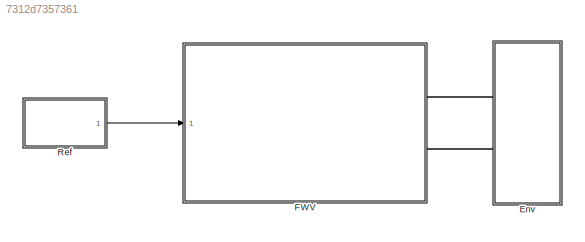
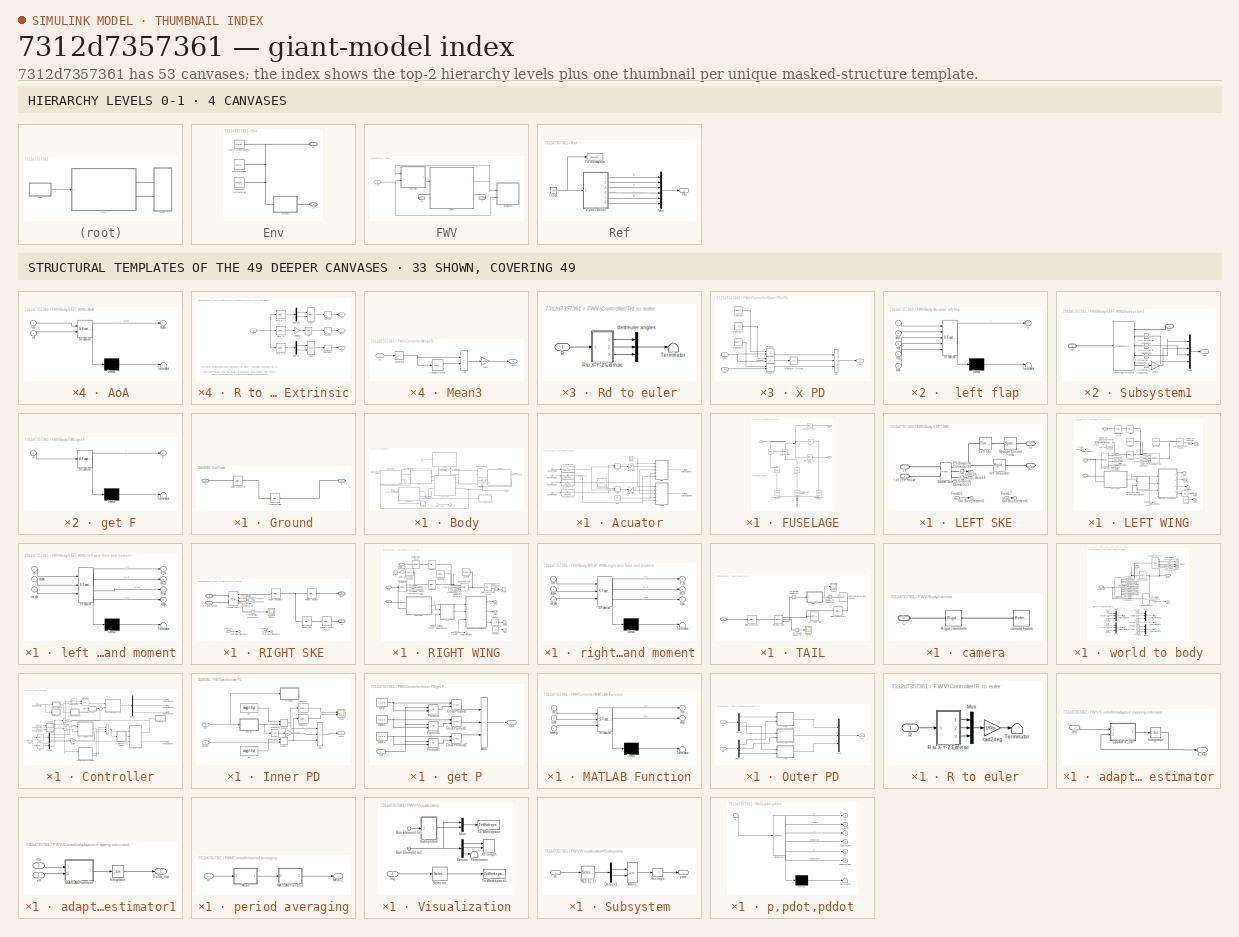
[diagram: thumbnail index - top-2 hierarchy levels (4 canvases) + 33 structural-template representatives of the remaining 49 canvases]
MODEL slx_7312d7357361
KIND model
CONFIG AbsTol = 1e-3
CONFIG EnableMultiTasking = on
CONFIG FixedStep = 0.01
CONFIG MaxStep = 0.01
CONFIG MinStep = auto
CONFIG RelTol = 1e-3
CONFIG SampleTimeConstraint = Unconstrained
CONFIG SolverName = ode15s
CONFIG StartTime = 0.0
CONFIG StopTime = 10
WORKSPACE source: external: MAT-File  (data not in archive)
BLOCK [SubSystem] Env
  Ports = [0, 0, 0, 0, 0, 2]
  RequestExecContextInheritance = off
BLOCK [PMIOPort] Env/G
  Port = 2
  Side = Left
BLOCK [SubSystem] Env/Ground
  Ports = [0, 0, 0, 0, 0, 1, 1]
  RequestExecContextInheritance = off
BLOCK [Reference] Env/Ground/Cylindrical Solid  REF=sm_lib/Body Elements/Cylindrical Solid
  Ports = [0, 0, 0, 0, 0, 1, 1]
  SourceBlock = sm_lib/Body Elements/Cylindrical Solid
  SourceProductBaseCode = MS
  SourceType = Cylindrical Solid
BLOCK [PMIOPort] Env/Ground/G
  Port = 2
  Side = Right
BLOCK [Reference] Env/Ground/Rigid Transform  REF=sm_lib/Frames and
Transforms/Rigid
Transform
  Ports = [0, 0, 0, 0, 0, 1, 1]
  SourceBlock = sm_lib/Frames and\nTransforms/Rigid\nTransform
  SourceProductBaseCode = MS
  SourceType = Rigid\nTransform
BLOCK [PMIOPort] Env/Ground/W
  Side = Left
BLOCK [Reference] Env/Mechanism Configuration  REF=sm_lib/Utilities/Mechanism
Configuration
  Ports = [0, 0, 0, 0, 0, 0, 1]
  SourceBlock = sm_lib/Utilities/Mechanism\nConfiguration
  SourceProductBaseCode = MS
  SourceType = Mechanism\nConfiguration
BLOCK [Reference] Env/Solver Configuration  REF=nesl_utility/Solver
Configuration
  Ports = [0, 0, 0, 0, 0, 0, 1]
  SourceBlock = nesl_utility/Solver\nConfiguration
  SourceProductBaseCode = PW,SS
  SourceType = Solver\nConfiguration
BLOCK [PMIOPort] Env/W
  Side = Left
BLOCK [Reference] Env/World Frame1  REF=sm_lib/Frames and
Transforms/World Frame
  Ports = [0, 0, 0, 0, 0, 0, 1]
  SourceBlock = sm_lib/Frames and\nTransforms/World Frame
  SourceProductBaseCode = MS
  SourceType = World Frame
BLOCK [SubSystem] FWV
  Ports = [1, 0, 0, 0, 0, 0, 2]
  RequestExecContextInheritance = off
BLOCK [SubSystem] FWV/Body
  Ports = [1, 1, 0, 0, 0, 1, 1]
  RequestExecContextInheritance = off
BLOCK [SubSystem] FWV/Body/Acuator
  PortSchema = {"entries":[{"content":{"sides":[{"content":{"connectorIds":["In1"]},"type":"ConnectorPlacement.EquallySpacedRectSide","uuid":"db46f0ff-2b35-4735-b2ba-99ebad500531"},{"content":{"connectorIds":[],"side":"RIGHT"},"type":"ConnectorPlacement.EquallySpacedRectSide","uuid":"a05d2a9d-5b8e-445a-bb52-abca9ea78047"},{"content":{"connectorIds":[],"side":"TOP"},"type":"ConnectorPlacement.EquallySpacedRectSid...<+391ch>
  Ports = [1, 2]
  RequestExecContextInheritance = off
BLOCK [SubSystem] FWV/Body/Acuator/ left flap
  ErrorFcn = Stateflow.Translate.translate
  PermitHierarchicalResolution = ExplicitOnly
  Ports = [5, 1]
  RequestExecContextInheritance = off
  SFBlockType = MATLAB Function
  TreatAsAtomicUnit = on
BLOCK [Demux] FWV/Body/Acuator/ left flap/ Demux 
  Outputs = 1
  Ports = [1, 1]
BLOCK [S-Function] FWV/Body/Acuator/ left flap/ SFunction 
  EnableBusSupport = on
  FunctionName = sf_sfun
  PortCounts = [5 2]
  Ports = [5, 2]
  SFcnIsStateOwnerBlock = off
  SFunctionDeploymentMode = off
  Tag = Stateflow S-Function 8
BLOCK [Terminator] FWV/Body/Acuator/ left flap/ Terminator 
BLOCK [Inport] FWV/Body/Acuator/ left flap/amp
  Port = 2
BLOCK [Inport] FWV/Body/Acuator/ left flap/bias
  Port = 5
BLOCK [Inport] FWV/Body/Acuator/ left flap/freq
  Port = 4
BLOCK [Inport] FWV/Body/Acuator/ left flap/sig
  Port = 3
BLOCK [Inport] FWV/Body/Acuator/ left flap/t
BLOCK [Outport] FWV/Body/Acuator/ left flap/y
BLOCK [SubSystem] FWV/Body/Acuator/ right flap
  ErrorFcn = Stateflow.Translate.translate
  PermitHierarchicalResolution = ExplicitOnly
  Ports = [5, 1]
  RequestExecContextInheritance = off
  SFBlockType = MATLAB Function
  TreatAsAtomicUnit = on
BLOCK [Demux] FWV/Body/Acuator/ right flap/ Demux 
  Outputs = 1
  Ports = [1, 1]
BLOCK [S-Function] FWV/Body/Acuator/ right flap/ SFunction 
  EnableBusSupport = on
  FunctionName = sf_sfun
  PortCounts = [5 2]
  Ports = [5, 2]
  SFcnIsStateOwnerBlock = off
  SFunctionDeploymentMode = off
  Tag = Stateflow S-Function 9
BLOCK [Terminator] FWV/Body/Acuator/ right flap/ Terminator 
BLOCK [Inport] FWV/Body/Acuator/ right flap/amp
  Port = 2
BLOCK [Inport] FWV/Body/Acuator/ right flap/bias
  Port = 5
BLOCK [Inport] FWV/Body/Acuator/ right flap/freq
  Port = 4
BLOCK [Inport] FWV/Body/Acuator/ right flap/sig
  Port = 3
BLOCK [Inport] FWV/Body/Acuator/ right flap/t
BLOCK [Outport] FWV/Body/Acuator/ right flap/y
BLOCK [Lookup_n-D] FWV/Body/Acuator/1-D Lookup Table
  BreakpointsForDimension1 = [-1:1]
  InputPortMap = u0
  InternalRulePriority = Speed
  NumberOfTableDimensions = 1
  Ports = [1, 1]
  RndMeth = Simplest
  Table = 1.0./(1+exp(-10*[-1:1]))
BLOCK [Sum] FWV/Body/Acuator/Add
  IconShape = rectangular
  Ports = [2, 1]
BLOCK [Sum] FWV/Body/Acuator/Add1
  IconShape = rectangular
  Inputs = +-
  Ports = [2, 1]
BLOCK [Inport] FWV/Body/Acuator/Bus Element In
BLOCK [Inport] FWV/Body/Acuator/Bus Element In1
BLOCK [Inport] FWV/Body/Acuator/Bus Element In2
BLOCK [Inport] FWV/Body/Acuator/Bus Element In3
BLOCK [Clock] FWV/Body/Acuator/Clock
BLOCK [Constant] FWV/Body/Acuator/One
  OutDataTypeStr = Inherit: Inherit via back propagation
  Value = 25
BLOCK [Outport] FWV/Body/Acuator/Out Bus Element
  Port = 2
BLOCK [Outport] FWV/Body/Acuator/Out Bus Element2
BLOCK [Saturate] FWV/Body/Acuator/Saturation
  LowerLimit = 0
  UpperLimit = pi/2
  ZeroCross = off
BLOCK [Saturate] FWV/Body/Acuator/Saturation1
  LowerLimit = 0
  UpperLimit = pi/2
  ZeroCross = off
BLOCK [TransferFcn] FWV/Body/Acuator/Transfer Fcn
  Denominator = [0.0226 1]
BLOCK [TransferFcn] FWV/Body/Acuator/Transfer Fcn1
  Denominator = [0.0226 1]
BLOCK [TransferFcn] FWV/Body/Acuator/Transfer Fcn2
  Denominator = [0.0226 1]
BLOCK [TransferFcn] FWV/Body/Acuator/Transfer Fcn3
  Denominator = [0.0226 1]
BLOCK [ConnectionLabel] FWV/Body/Connection Label2
  Label = W
  Ports = [0, 0, 0, 0, 0, 1]
BLOCK [ConnectionLabel] FWV/Body/Connection Label3
  Label = W
  Ports = [0, 0, 0, 0, 0, 1]
BLOCK [ConnectionLabel] FWV/Body/Connection Label4
  Label = W
  Ports = [0, 0, 0, 0, 0, 1]
BLOCK [ConnectionLabel] FWV/Body/Connection Label5
  Label = W
  Ports = [0, 0, 0, 0, 0, 1]
BLOCK [SubSystem] FWV/Body/FUSELAGE
  Ports = [0, 0, 0, 0, 0, 2, 2]
  RequestExecContextInheritance = off
BLOCK [PMIOPort] FWV/Body/FUSELAGE/F1
  Side = Right
BLOCK [PMIOPort] FWV/Body/FUSELAGE/F2
  Port = 2
  Side = Left
BLOCK [PMIOPort] FWV/Body/FUSELAGE/G
  NameLocation = left
  Port = 4
  Side = Right
BLOCK [Reference] FWV/Body/FUSELAGE/Rigid Transform  REF=sm_lib/Frames and
Transforms/Rigid
Transform
  NameLocation = left
  Ports = [0, 0, 0, 0, 0, 1, 1]
  SourceBlock = sm_lib/Frames and\nTransforms/Rigid\nTransform
  SourceProductBaseCode = MS
  SourceType = Rigid\nTransform
BLOCK [Reference] FWV/Body/FUSELAGE/Rigid Transform1  REF=sm_lib/Frames and
Transforms/Rigid
Transform
  NameLocation = left
  Ports = [0, 0, 0, 0, 0, 1, 1]
  SourceBlock = sm_lib/Frames and\nTransforms/Rigid\nTransform
  SourceProductBaseCode = MS
  SourceType = Rigid\nTransform
BLOCK [Reference] FWV/Body/FUSELAGE/Spatial Contact Force  REF=sm_lib/Forces and
Torques/Spatial
Contact Force
  NameLocation = right
  Ports = [0, 0, 0, 0, 0, 1, 1]
  SourceBlock = sm_lib/Forces and\nTorques/Spatial\nContact Force
  SourceProductBaseCode = MS
  SourceType = Spatial\nContact Force
BLOCK [Reference] FWV/Body/FUSELAGE/Spatial Contact Force1  REF=sm_lib/Forces and
Torques/Spatial
Contact Force
  NameLocation = right
  Ports = [0, 0, 0, 0, 0, 1, 1]
  SourceBlock = sm_lib/Forces and\nTorques/Spatial\nContact Force
  SourceProductBaseCode = MS
  SourceType = Spatial\nContact Force
BLOCK [Reference] FWV/Body/FUSELAGE/Spatial Contact Force2  REF=sm_lib/Forces and
Torques/Spatial
Contact Force
  NameLocation = right
  Ports = [0, 0, 0, 0, 0, 1, 1]
  SourceBlock = sm_lib/Forces and\nTorques/Spatial\nContact Force
  SourceProductBaseCode = MS
  SourceType = Spatial\nContact Force
BLOCK [PMIOPort] FWV/Body/FUSELAGE/TS
  Port = 3
  Side = Left
BLOCK [Reference] FWV/Body/FUSELAGE/left_edge_of_torso  REF=sm_lib/Frames and
Transforms/Rigid
Transform
  Ports = [0, 0, 0, 0, 0, 1, 1]
  SourceBlock = sm_lib/Frames and\nTransforms/Rigid\nTransform
  SourceProductBaseCode = MS
  SourceType = Rigid\nTransform
BLOCK [Reference] FWV/Body/FUSELAGE/leg  REF=sm_lib/Body Elements/Cylindrical Solid
  NameLocation = top
  Ports = [0, 0, 0, 0, 0, 1, 1]
  SourceBlock = sm_lib/Body Elements/Cylindrical Solid
  SourceProductBaseCode = MS
  SourceType = Cylindrical Solid
BLOCK [Reference] FWV/Body/FUSELAGE/leg1  REF=sm_lib/Body Elements/Cylindrical Solid
  NameLocation = top
  Ports = [0, 0, 0, 0, 0, 1, 1]
  SourceBlock = sm_lib/Body Elements/Cylindrical Solid
  SourceProductBaseCode = MS
  SourceType = Cylindrical Solid
BLOCK [Reference] FWV/Body/FUSELAGE/right_edge_of_torso  REF=sm_lib/Frames and
Transforms/Rigid
Transform
  Ports = [0, 0, 0, 0, 0, 1, 1]
  SourceBlock = sm_lib/Frames and\nTransforms/Rigid\nTransform
  SourceProductBaseCode = MS
  SourceType = Rigid\nTransform
BLOCK [Reference] FWV/Body/FUSELAGE/torso  REF=sm_lib/Body Elements/File Solid
  Ports = [0, 0, 0, 0, 0, 1, 1]
  SourceBlock = sm_lib/Body Elements/File Solid
  SourceProductBaseCode = MS
  SourceType = File Solid
BLOCK [PMIOPort] FWV/Body/G
  NameLocation = top
  Side = Right
BLOCK [SubSystem] FWV/Body/LEFT SKE
  PortSchema = {"entries":[{"content":{"sides":[{"content":{"connectorIds":["LConn1","LConn2"]},"type":"ConnectorPlacement.EquallySpacedRectSide","uuid":"e449d641-3a3a-4b99-9659-b7cfb3580d3e"},{"content":{"connectorIds":["RConn1","RConn2"],"side":"RIGHT"},"type":"ConnectorPlacement.EquallySpacedRectSide","uuid":"c0f0c2d4-a937-4da0-b288-84b9bdeda0ec"},{"content":{"connectorIds":["Out1"],"side":"TOP"},"type":"Conn...<+269ch>
  Ports = [0, 1, 0, 0, 0, 2, 2]
  RequestExecContextInheritance = off
BLOCK [From] FWV/Body/LEFT SKE/From13
  GotoTag = psi_l
BLOCK [From] FWV/Body/LEFT SKE/From17
  GotoTag = psi_dot_l
BLOCK [PMIOPort] FWV/Body/LEFT SKE/G
  NameLocation = top
  Port = 4
  Side = Right
BLOCK [Goto] FWV/Body/LEFT SKE/Goto14
  GotoTag = psi_l
BLOCK [Goto] FWV/Body/LEFT SKE/Goto18
  GotoTag = psi_dot_l
BLOCK [PMIOPort] FWV/Body/LEFT SKE/LT
  Port = 2
  Side = Left
BLOCK [Reference] FWV/Body/LEFT SKE/Left LE1  REF=sm_lib/Body Elements/File Solid
  Ports = [0, 0, 0, 0, 0, 1, 1]
  SourceBlock = sm_lib/Body Elements/File Solid
  SourceProductBaseCode = MS
  SourceType = File Solid
BLOCK [Outport] FWV/Body/LEFT SKE/Out Bus Element5
BLOCK [Outport] FWV/Body/LEFT SKE/Out Bus Element6
BLOCK [Reference] FWV/Body/LEFT SKE/PS-Simulink Converter13  REF=nesl_utility/PS-Simulink
Converter
  Ports = [0, 1, 0, 0, 0, 1]
  SourceBlock = nesl_utility/PS-Simulink\nConverter
  SourceProductBaseCode = PW,SS
  SourceType = PS-Simulink\nConverter
BLOCK [Reference] FWV/Body/LEFT SKE/PS-Simulink Converter17  REF=nesl_utility/PS-Simulink
Converter
  Ports = [0, 1, 0, 0, 0, 1]
  SourceBlock = nesl_utility/PS-Simulink\nConverter
  SourceProductBaseCode = PW,SS
  SourceType = PS-Simulink\nConverter
BLOCK [Reference] FWV/Body/LEFT SKE/Spatial Contact Force  REF=sm_lib/Forces and
Torques/Spatial
Contact Force
  Ports = [0, 0, 0, 0, 0, 1, 1]
  SourceBlock = sm_lib/Forces and\nTorques/Spatial\nContact Force
  SourceProductBaseCode = MS
  SourceType = Spatial\nContact Force
BLOCK [Reference] FWV/Body/LEFT SKE/Stroke Joint  REF=sm_lib/Joints/Revolute Joint
  Ports = [0, 0, 0, 0, 0, 2, 3]
  SourceBlock = sm_lib/Joints/Revolute Joint
  SourceProductBaseCode = MS
  SourceType = Revolute Joint
BLOCK [PMIOPort] FWV/Body/LEFT SKE/WT
  Port = 3
  Side = Right
BLOCK [Reference] FWV/Body/LEFT SKE/left Shoulder  REF=sm_lib/Frames and
Transforms/Rigid
Transform
  Ports = [0, 0, 0, 0, 0, 1, 1]
  SourceBlock = sm_lib/Frames and\nTransforms/Rigid\nTransform
  SourceProductBaseCode = MS
  SourceType = Rigid\nTransform
BLOCK [PMIOPort] FWV/Body/LEFT SKE/t of Left Stroke
  Side = Left
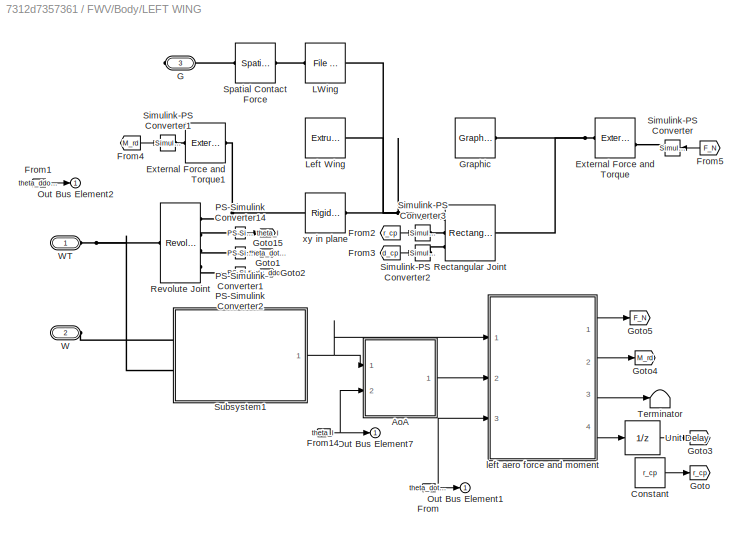
BLOCK [SubSystem] FWV/Body/LEFT WING
  Ports = [0, 1, 0, 0, 0, 2, 1]
  RequestExecContextInheritance = off
BLOCK [SubSystem] FWV/Body/LEFT WING/AoA
  ErrorFcn = Stateflow.Translate.translate
  PermitHierarchicalResolution = ExplicitOnly
  Ports = [2, 1]
  RequestExecContextInheritance = off
  SFBlockType = MATLAB Function
  TreatAsAtomicUnit = on
BLOCK [Demux] FWV/Body/LEFT WING/AoA/ Demux 
  Outputs = 1
  Ports = [1, 1]
BLOCK [S-Function] FWV/Body/LEFT WING/AoA/ SFunction 
  EnableBusSupport = on
  FunctionName = sf_sfun
  Parameters = Rw,r22,r33
  PortCounts = [2 2]
  Ports = [2, 2]
  SFcnIsStateOwnerBlock = off
  SFunctionDeploymentMode = off
  Tag = Stateflow S-Function 13
BLOCK [Terminator] FWV/Body/LEFT WING/AoA/ Terminator 
BLOCK [Outport] FWV/Body/LEFT WING/AoA/alpha
BLOCK [Inport] FWV/Body/LEFT WING/AoA/le0
BLOCK [Inport] FWV/Body/LEFT WING/AoA/rot
  Port = 2
BLOCK [Constant] FWV/Body/LEFT WING/Constant
  Value = r_cp
BLOCK [Reference] FWV/Body/LEFT WING/External Force and Torque  REF=sm_lib/Forces and
Torques/External Force
and Torque
  Ports = [0, 0, 0, 0, 0, 2, 1]
  SourceBlock = sm_lib/Forces and\nTorques/External Force\nand Torque
  SourceProductBaseCode = MS
  SourceType = External Force\nand Torque
BLOCK [Reference] FWV/Body/LEFT WING/External Force and Torque1  REF=sm_lib/Forces and
Torques/External Force
and Torque
  Ports = [0, 0, 0, 0, 0, 1, 1]
  SourceBlock = sm_lib/Forces and\nTorques/External Force\nand Torque
  SourceProductBaseCode = MS
  SourceType = External Force\nand Torque
BLOCK [From] FWV/Body/LEFT WING/From
  GotoTag = theta_dot_l
BLOCK [From] FWV/Body/LEFT WING/From1
  GotoTag = theta_ddot_l
BLOCK [From] FWV/Body/LEFT WING/From14
  GotoTag = theta_l
BLOCK [From] FWV/Body/LEFT WING/From2
  GotoTag = r_cp
BLOCK [From] FWV/Body/LEFT WING/From3
  GotoTag = d_cp
BLOCK [From] FWV/Body/LEFT WING/From4
  GotoTag = M_rd
BLOCK [From] FWV/Body/LEFT WING/From5
  GotoTag = F_N
BLOCK [PMIOPort] FWV/Body/LEFT WING/G
  Port = 3
  Side = Right
BLOCK [Goto] FWV/Body/LEFT WING/Goto
  GotoTag = r_cp
BLOCK [Goto] FWV/Body/LEFT WING/Goto1
  GotoTag = theta_dot_l
BLOCK [Goto] FWV/Body/LEFT WING/Goto15
  GotoTag = theta_l
BLOCK [Goto] FWV/Body/LEFT WING/Goto2
  GotoTag = theta_ddot_l
BLOCK [Goto] FWV/Body/LEFT WING/Goto3
  GotoTag = d_cp
BLOCK [Goto] FWV/Body/LEFT WING/Goto4
  GotoTag = M_rd
BLOCK [Goto] FWV/Body/LEFT WING/Goto5
  GotoTag = F_N
BLOCK [Reference] FWV/Body/LEFT WING/Graphic  REF=sm_lib/Body Elements/Graphic
  Commented = on
  Ports = [0, 0, 0, 0, 0, 0, 1]
  SourceBlock = sm_lib/Body Elements/Graphic
  SourceProductBaseCode = MS
  SourceType = Graphic
BLOCK [Reference] FWV/Body/LEFT WING/LWing  REF=sm_lib/Body Elements/File Solid
  Ports = [0, 0, 0, 0, 0, 1, 1]
  SourceBlock = sm_lib/Body Elements/File Solid
  SourceProductBaseCode = MS
  SourceType = File Solid
BLOCK [Reference] FWV/Body/LEFT WING/Left Wing  REF=sm_lib/Body Elements/Extruded Solid
  Commented = on
  Ports = [0, 0, 0, 0, 0, 0, 1]
  SourceBlock = sm_lib/Body Elements/Extruded Solid
  SourceProductBaseCode = MS
  SourceType = Extruded Solid
BLOCK [Outport] FWV/Body/LEFT WING/Out Bus Element1
BLOCK [Outport] FWV/Body/LEFT WING/Out Bus Element2
BLOCK [Outport] FWV/Body/LEFT WING/Out Bus Element7
BLOCK [Reference] FWV/Body/LEFT WING/PS-Simulink Converter1  REF=nesl_utility/PS-Simulink
Converter
  Ports = [0, 1, 0, 0, 0, 1]
  SourceBlock = nesl_utility/PS-Simulink\nConverter
  SourceProductBaseCode = PW,SS
  SourceType = PS-Simulink\nConverter
BLOCK [Reference] FWV/Body/LEFT WING/PS-Simulink Converter14  REF=nesl_utility/PS-Simulink
Converter
  Ports = [0, 1, 0, 0, 0, 1]
  SourceBlock = nesl_utility/PS-Simulink\nConverter
  SourceProductBaseCode = PW,SS
  SourceType = PS-Simulink\nConverter
BLOCK [Reference] FWV/Body/LEFT WING/PS-Simulink Converter2  REF=nesl_utility/PS-Simulink
Converter
  Ports = [0, 1, 0, 0, 0, 1]
  SourceBlock = nesl_utility/PS-Simulink\nConverter
  SourceProductBaseCode = PW,SS
  SourceType = PS-Simulink\nConverter
BLOCK [Reference] FWV/Body/LEFT WING/Rectangular Joint  REF=sm_lib/Joints/Rectangular
Joint
  Ports = [0, 0, 0, 0, 0, 3, 1]
  SourceBlock = sm_lib/Joints/Rectangular\nJoint
  SourceProductBaseCode = MS
  SourceType = Rectangular\nJoint
BLOCK [Reference] FWV/Body/LEFT WING/Revolute Joint  REF=sm_lib/Joints/Revolute Joint
  Ports = [0, 0, 0, 0, 0, 1, 4]
  SourceBlock = sm_lib/Joints/Revolute Joint
  SourceProductBaseCode = MS
  SourceType = Revolute Joint
BLOCK [Reference] FWV/Body/LEFT WING/Simulink-PS Converter  REF=nesl_utility/Simulink-PS
Converter
  Ports = [1, 0, 0, 0, 0, 0, 1]
  SourceBlock = nesl_utility/Simulink-PS\nConverter
  SourceProductBaseCode = PW,SS
  SourceType = Simulink-PS\nConverter
BLOCK [Reference] FWV/Body/LEFT WING/Simulink-PS Converter1  REF=nesl_utility/Simulink-PS
Converter
  Ports = [1, 0, 0, 0, 0, 0, 1]
  SourceBlock = nesl_utility/Simulink-PS\nConverter
  SourceProductBaseCode = PW,SS
  SourceType = Simulink-PS\nConverter
BLOCK [Reference] FWV/Body/LEFT WING/Simulink-PS Converter2  REF=nesl_utility/Simulink-PS
Converter
  Ports = [1, 0, 0, 0, 0, 0, 1]
  SourceBlock = nesl_utility/Simulink-PS\nConverter
  SourceProductBaseCode = PW,SS
  SourceType = Simulink-PS\nConverter
BLOCK [Reference] FWV/Body/LEFT WING/Simulink-PS Converter3  REF=nesl_utility/Simulink-PS
Converter
  Ports = [1, 0, 0, 0, 0, 0, 1]
  SourceBlock = nesl_utility/Simulink-PS\nConverter
  SourceProductBaseCode = PW,SS
  SourceType = Simulink-PS\nConverter
BLOCK [Reference] FWV/Body/LEFT WING/Spatial Contact Force  REF=sm_lib/Forces and
Torques/Spatial
Contact Force
  Ports = [0, 0, 0, 0, 0, 1, 1]
  SourceBlock = sm_lib/Forces and\nTorques/Spatial\nContact Force
  SourceProductBaseCode = MS
  SourceType = Spatial\nContact Force
BLOCK [SubSystem] FWV/Body/LEFT WING/Subsystem1
  Ports = [0, 1, 0, 0, 0, 2]
  RequestExecContextInheritance = off
BLOCK [Gain] FWV/Body/LEFT WING/Subsystem1/Gain
  Gain = -1
BLOCK [Reference] FWV/Body/LEFT WING/Subsystem1/LWing-root in world  REF=sm_lib/Frames and
Transforms/Transform
Sensor
  Ports = [0, 0, 0, 0, 0, 1, 5]
  SourceBlock = sm_lib/Frames and\nTransforms/Transform\nSensor
  SourceProductBaseCode = MS
  SourceType = Transform\nSensor
BLOCK [Mux] FWV/Body/LEFT WING/Subsystem1/Mux
  DisplayOption = bar
  Ports = [4, 1]
BLOCK [Reference] FWV/Body/LEFT WING/Subsystem1/PS-Simulink Converter  REF=nesl_utility/PS-Simulink
Converter
  Ports = [0, 1, 0, 0, 0, 1]
  SourceBlock = nesl_utility/PS-Simulink\nConverter
  SourceProductBaseCode = PW,SS
  SourceType = PS-Simulink\nConverter
BLOCK [Reference] FWV/Body/LEFT WING/Subsystem1/PS-Simulink Converter1  REF=nesl_utility/PS-Simulink
Converter
  Ports = [0, 1, 0, 0, 0, 1]
  SourceBlock = nesl_utility/PS-Simulink\nConverter
  SourceProductBaseCode = PW,SS
  SourceType = PS-Simulink\nConverter
BLOCK [Reference] FWV/Body/LEFT WING/Subsystem1/PS-Simulink Converter2  REF=nesl_utility/PS-Simulink
Converter
  Ports = [0, 1, 0, 0, 0, 1]
  SourceBlock = nesl_utility/PS-Simulink\nConverter
  SourceProductBaseCode = PW,SS
  SourceType = PS-Simulink\nConverter
BLOCK [Reference] FWV/Body/LEFT WING/Subsystem1/PS-Simulink Converter3  REF=nesl_utility/PS-Simulink
Converter
  Ports = [0, 1, 0, 0, 0, 1]
  SourceBlock = nesl_utility/PS-Simulink\nConverter
  SourceProductBaseCode = PW,SS
  SourceType = PS-Simulink\nConverter
BLOCK [PMIOPort] FWV/Body/LEFT WING/Subsystem1/W
  Side = Left
BLOCK [PMIOPort] FWV/Body/LEFT WING/Subsystem1/WT
  Port = 2
  Side = Left
BLOCK [Outport] FWV/Body/LEFT WING/Subsystem1/le0
BLOCK [Terminator] FWV/Body/LEFT WING/Terminator
BLOCK [UnitDelay] FWV/Body/LEFT WING/Unit Delay
  HasFrameUpgradeWarning = on
  InitialCondition = -0.51*c_bar
  SampleTime = -1
BLOCK [PMIOPort] FWV/Body/LEFT WING/W
  Port = 2
  Side = Left
BLOCK [PMIOPort] FWV/Body/LEFT WING/WT
  Side = Left
BLOCK [SubSystem] FWV/Body/LEFT WING/left aero force and moment
  ErrorFcn = Stateflow.Translate.translate
  PermitHierarchicalResolution = ExplicitOnly
  Ports = [3, 4]
  RequestExecContextInheritance = off
  SFBlockType = MATLAB Function
  TreatAsAtomicUnit = on
BLOCK [Demux] FWV/Body/LEFT WING/left aero force and moment/ Demux 
  Outputs = 1
  Ports = [1, 1]
BLOCK [S-Function] FWV/Body/LEFT WING/left aero force and moment/ SFunction 
  EnableBusSupport = on
  FunctionName = sf_sfun
  Parameters = A_D,A_L,C_D0,Rw,c_bar,r00,r11,r22,rho,z00,z11,z22,zrd
  PortCounts = [3 5]
  Ports = [3, 5]
  SFcnIsStateOwnerBlock = off
  SFunctionDeploymentMode = off
  Tag = Stateflow S-Function 15
BLOCK [Terminator] FWV/Body/LEFT WING/left aero force and moment/ Terminator 
BLOCK [Outport] FWV/Body/LEFT WING/left aero force and moment/F_N
BLOCK [Outport] FWV/Body/LEFT WING/left aero force and moment/M_ae
  Port = 3
BLOCK [Outport] FWV/Body/LEFT WING/left aero force and moment/M_rd
  Port = 2
BLOCK [Inport] FWV/Body/LEFT WING/left aero force and moment/alpha
  Port = 2
BLOCK [Outport] FWV/Body/LEFT WING/left aero force and moment/d_cp
  Port = 4
BLOCK [Inport] FWV/Body/LEFT WING/left aero force and moment/le0
BLOCK [Inport] FWV/Body/LEFT WING/left aero force and moment/rot_dot
  Port = 3
BLOCK [Reference] FWV/Body/LEFT WING/xy in plane  REF=sm_lib/Frames and
Transforms/Rigid
Transform
  Ports = [0, 0, 0, 0, 0, 1, 1]
  SourceBlock = sm_lib/Frames and\nTransforms/Rigid\nTransform
  SourceProductBaseCode = MS
  SourceType = Rigid\nTransform
BLOCK [Outport] FWV/Body/Out Bus Element
BLOCK [Outport] FWV/Body/Out Bus Element1
BLOCK [Outport] FWV/Body/Out Bus Element2
BLOCK [Outport] FWV/Body/Out Bus Element3
BLOCK [Outport] FWV/Body/Out Bus Element4
BLOCK [SubSystem] FWV/Body/RIGHT SKE
  PortSchema = {"entries":[{"content":{"sides":[{"content":{"connectorIds":["LConn1","LConn2"]},"type":"ConnectorPlacement.EquallySpacedRectSide","uuid":"e80f0529-82a8-4e91-8f70-1f5fff48efb0"},{"content":{"connectorIds":["RConn1","RConn2"],"side":"RIGHT"},"type":"ConnectorPlacement.EquallySpacedRectSide","uuid":"c7e3ee7d-7bee-46da-b210-768e5832b89d"},{"content":{"connectorIds":["Out1"],"side":"TOP"},"type":"Conn...<+269ch>
  Ports = [0, 1, 0, 0, 0, 2, 2]
  RequestExecContextInheritance = off
BLOCK [From] FWV/Body/RIGHT SKE/From15
  GotoTag = psi_r
BLOCK [From] FWV/Body/RIGHT SKE/From18
  GotoTag = psi_dot_r
BLOCK [PMIOPort] FWV/Body/RIGHT SKE/G
  NameLocation = top
  Port = 4
  Side = Left
BLOCK [Goto] FWV/Body/RIGHT SKE/Goto17
  GotoTag = psi_r
BLOCK [Goto] FWV/Body/RIGHT SKE/Goto19
  GotoTag = psi_dot_r
BLOCK [Outport] FWV/Body/RIGHT SKE/Out Bus Element8
BLOCK [Outport] FWV/Body/RIGHT SKE/Out Bus Element9
BLOCK [Reference] FWV/Body/RIGHT SKE/PS-Simulink Converter16  REF=nesl_utility/PS-Simulink
Converter
  Ports = [0, 1, 0, 0, 0, 1]
  SourceBlock = nesl_utility/PS-Simulink\nConverter
  SourceProductBaseCode = PW,SS
  SourceType = PS-Simulink\nConverter
BLOCK [Reference] FWV/Body/RIGHT SKE/PS-Simulink Converter18  REF=nesl_utility/PS-Simulink
Converter
  Ports = [0, 1, 0, 0, 0, 1]
  SourceBlock = nesl_utility/PS-Simulink\nConverter
  SourceProductBaseCode = PW,SS
  SourceType = PS-Simulink\nConverter
BLOCK [Reference] FWV/Body/RIGHT SKE/PS-Simulink Converter2  REF=nesl_utility/PS-Simulink
Converter
  Ports = [0, 1, 0, 0, 0, 1]
  SourceBlock = nesl_utility/PS-Simulink\nConverter
  SourceProductBaseCode = PW,SS
  SourceType = PS-Simulink\nConverter
BLOCK [PMIOPort] FWV/Body/RIGHT SKE/RT
  Port = 3
  Side = Right
BLOCK [Reference] FWV/Body/RIGHT SKE/Right LE1  REF=sm_lib/Body Elements/File Solid
  Ports = [0, 0, 0, 0, 0, 1, 1]
  SourceBlock = sm_lib/Body Elements/File Solid
  SourceProductBaseCode = MS
  SourceType = File Solid
BLOCK [Reference] FWV/Body/RIGHT SKE/Right Shoulder  REF=sm_lib/Frames and
Transforms/Rigid
Transform
  Ports = [0, 0, 0, 0, 0, 1, 1]
  SourceBlock = sm_lib/Frames and\nTransforms/Rigid\nTransform
  SourceProductBaseCode = MS
  SourceType = Rigid\nTransform
BLOCK [Reference] FWV/Body/RIGHT SKE/Right Shoulder1  REF=sm_lib/Frames and
Transforms/Rigid
Transform
  Ports = [0, 0, 0, 0, 0, 1, 1]
  SourceBlock = sm_lib/Frames and\nTransforms/Rigid\nTransform
  SourceProductBaseCode = MS
  SourceType = Rigid\nTransform
BLOCK [Scope] FWV/Body/RIGHT SKE/Scope
  Floating = off
  NumInputPorts = 1
  Ports = [1]
  ScopeSpecificationString = Simulink.scopes.TimeScopeBlockCfg('CurrentConfiguration', extmgr.ConfigurationSet(extmgr.Configuration('Core','General UI',true),extmgr.Configuration('Core','Source UI',true),extmgr.Configuration('Sources','WiredSimulink',true,'DataLoggingVariableName','ScopeData2'),extmgr.Configuration('Visuals','Time Domain',true,'SerializedDisplays',{struct('MinYLimReal','-1262363.57853','MaxYLimReal','1231317....<+1622ch>
BLOCK [Reference] FWV/Body/RIGHT SKE/Spatial Contact Force  REF=sm_lib/Forces and
Torques/Spatial
Contact Force
  Ports = [0, 0, 0, 0, 0, 1, 1]
  SourceBlock = sm_lib/Forces and\nTorques/Spatial\nContact Force
  SourceProductBaseCode = MS
  SourceType = Spatial\nContact Force
BLOCK [Reference] FWV/Body/RIGHT SKE/Stroke Joint1  REF=sm_lib/Joints/Revolute Joint
  Ports = [0, 0, 0, 0, 0, 2, 4]
  SourceBlock = sm_lib/Joints/Revolute Joint
  SourceProductBaseCode = MS
  SourceType = Revolute Joint
BLOCK [PMIOPort] FWV/Body/RIGHT SKE/WT
  NameLocation = top
  Side = Left
BLOCK [PMIOPort] FWV/Body/RIGHT SKE/t of Right Stroke
  Port = 2
  Side = Right
BLOCK [SubSystem] FWV/Body/RIGHT WING
  Ports = [0, 1, 0, 0, 0, 2, 1]
  RequestExecContextInheritance = off
BLOCK [SubSystem] FWV/Body/RIGHT WING/AoA1
  ErrorFcn = Stateflow.Translate.translate
  PermitHierarchicalResolution = ExplicitOnly
  Ports = [2, 1]
  RequestExecContextInheritance = off
  SFBlockType = MATLAB Function
  TreatAsAtomicUnit = on
BLOCK [Demux] FWV/Body/RIGHT WING/AoA1/ Demux 
  Outputs = 1
  Ports = [1, 1]
BLOCK [S-Function] FWV/Body/RIGHT WING/AoA1/ SFunction 
  EnableBusSupport = on
  FunctionName = sf_sfun
  Parameters = Rw,r22,r33
  PortCounts = [2 2]
  Ports = [2, 2]
  SFcnIsStateOwnerBlock = off
  SFunctionDeploymentMode = off
  Tag = Stateflow S-Function 16
BLOCK [Terminator] FWV/Body/RIGHT WING/AoA1/ Terminator 
BLOCK [Outport] FWV/Body/RIGHT WING/AoA1/alpha
BLOCK [Inport] FWV/Body/RIGHT WING/AoA1/le0
BLOCK [Inport] FWV/Body/RIGHT WING/AoA1/rot
  Port = 2
BLOCK [Constant] FWV/Body/RIGHT WING/Constant
  Value = -r_cp
BLOCK [Reference] FWV/Body/RIGHT WING/External Force and Torque  REF=sm_lib/Forces and
Torques/External Force
and Torque
  Ports = [0, 0, 0, 0, 0, 2, 1]
  SourceBlock = sm_lib/Forces and\nTorques/External Force\nand Torque
  SourceProductBaseCode = MS
  SourceType = External Force\nand Torque
BLOCK [Reference] FWV/Body/RIGHT WING/External Force and Torque1  REF=sm_lib/Forces and
Torques/External Force
and Torque
  Ports = [0, 0, 0, 0, 0, 1, 1]
  SourceBlock = sm_lib/Forces and\nTorques/External Force\nand Torque
  SourceProductBaseCode = MS
  SourceType = External Force\nand Torque
BLOCK [From] FWV/Body/RIGHT WING/From
  GotoTag = theta_dot_r
BLOCK [From] FWV/Body/RIGHT WING/From1
  GotoTag = F_N
BLOCK [From] FWV/Body/RIGHT WING/From16
  GotoTag = theta_r
BLOCK [From] FWV/Body/RIGHT WING/From2
  GotoTag = M_rd
BLOCK [From] FWV/Body/RIGHT WING/From3
  GotoTag = d_cp
BLOCK [From] FWV/Body/RIGHT WING/From4
  GotoTag = r_cp
BLOCK [PMIOPort] FWV/Body/RIGHT WING/G
  Port = 3
  Side = Right
BLOCK [Goto] FWV/Body/RIGHT WING/Goto
  GotoTag = r_cp
BLOCK [Goto] FWV/Body/RIGHT WING/Goto1
  GotoTag = theta_dot_r
BLOCK [Goto] FWV/Body/RIGHT WING/Goto16
  GotoTag = theta_r
BLOCK [Goto] FWV/Body/RIGHT WING/Goto3
  GotoTag = d_cp
BLOCK [Goto] FWV/Body/RIGHT WING/Goto4
  GotoTag = M_rd
BLOCK [Goto] FWV/Body/RIGHT WING/Goto5
  GotoTag = F_N
BLOCK [Reference] FWV/Body/RIGHT WING/Graphic  REF=sm_lib/Body Elements/Graphic
  Commented = on
  Ports = [0, 0, 0, 0, 0, 0, 1]
  SourceBlock = sm_lib/Body Elements/Graphic
  SourceProductBaseCode = MS
  SourceType = Graphic
BLOCK [Outport] FWV/Body/RIGHT WING/Out Bus Element1
BLOCK [Outport] FWV/Body/RIGHT WING/Out Bus Element10
BLOCK [Reference] FWV/Body/RIGHT WING/PS-Simulink Converter1  REF=nesl_utility/PS-Simulink
Converter
  Ports = [0, 1, 0, 0, 0, 1]
  SourceBlock = nesl_utility/PS-Simulink\nConverter
  SourceProductBaseCode = PW,SS
  SourceType = PS-Simulink\nConverter
BLOCK [Reference] FWV/Body/RIGHT WING/PS-Simulink Converter15  REF=nesl_utility/PS-Simulink
Converter
  Ports = [0, 1, 0, 0, 0, 1]
  SourceBlock = nesl_utility/PS-Simulink\nConverter
  SourceProductBaseCode = PW,SS
  SourceType = PS-Simulink\nConverter
BLOCK [Reference] FWV/Body/RIGHT WING/RWing  REF=sm_lib/Body Elements/File Solid
  Ports = [0, 0, 0, 0, 0, 1, 1]
  SourceBlock = sm_lib/Body Elements/File Solid
  SourceProductBaseCode = MS
  SourceType = File Solid
BLOCK [Reference] FWV/Body/RIGHT WING/Rectangular Joint  REF=sm_lib/Joints/Rectangular
Joint
  Ports = [0, 0, 0, 0, 0, 3, 1]
  SourceBlock = sm_lib/Joints/Rectangular\nJoint
  SourceProductBaseCode = MS
  SourceType = Rectangular\nJoint
BLOCK [Reference] FWV/Body/RIGHT WING/Revolute Joint  REF=sm_lib/Joints/Revolute Joint
  Ports = [0, 0, 0, 0, 0, 1, 3]
  SourceBlock = sm_lib/Joints/Revolute Joint
  SourceProductBaseCode = MS
  SourceType = Revolute Joint
BLOCK [Reference] FWV/Body/RIGHT WING/Right Wing  REF=sm_lib/Body Elements/Extruded Solid
  Commented = on
  Ports = [0, 0, 0, 0, 0, 0, 1]
  SourceBlock = sm_lib/Body Elements/Extruded Solid
  SourceProductBaseCode = MS
  SourceType = Extruded Solid
BLOCK [Reference] FWV/Body/RIGHT WING/Simulink-PS Converter  REF=nesl_utility/Simulink-PS
Converter
  Ports = [1, 0, 0, 0, 0, 0, 1]
  SourceBlock = nesl_utility/Simulink-PS\nConverter
  SourceProductBaseCode = PW,SS
  SourceType = Simulink-PS\nConverter
BLOCK [Reference] FWV/Body/RIGHT WING/Simulink-PS Converter1  REF=nesl_utility/Simulink-PS
Converter
  Ports = [1, 0, 0, 0, 0, 0, 1]
  SourceBlock = nesl_utility/Simulink-PS\nConverter
  SourceProductBaseCode = PW,SS
  SourceType = Simulink-PS\nConverter
BLOCK [Reference] FWV/Body/RIGHT WING/Simulink-PS Converter2  REF=nesl_utility/Simulink-PS
Converter
  Ports = [1, 0, 0, 0, 0, 0, 1]
  SourceBlock = nesl_utility/Simulink-PS\nConverter
  SourceProductBaseCode = PW,SS
  SourceType = Simulink-PS\nConverter
BLOCK [Reference] FWV/Body/RIGHT WING/Simulink-PS Converter3  REF=nesl_utility/Simulink-PS
Converter
  Ports = [1, 0, 0, 0, 0, 0, 1]
  SourceBlock = nesl_utility/Simulink-PS\nConverter
  SourceProductBaseCode = PW,SS
  SourceType = Simulink-PS\nConverter
BLOCK [Reference] FWV/Body/RIGHT WING/Spatial Contact Force  REF=sm_lib/Forces and
Torques/Spatial
Contact Force
  Ports = [0, 0, 0, 0, 0, 1, 1]
  SourceBlock = sm_lib/Forces and\nTorques/Spatial\nContact Force
  SourceProductBaseCode = MS
  SourceType = Spatial\nContact Force
BLOCK [SubSystem] FWV/Body/RIGHT WING/Subsystem1
  Ports = [0, 1, 0, 0, 0, 2]
  RequestExecContextInheritance = off
BLOCK [Gain] FWV/Body/RIGHT WING/Subsystem1/Gain
  Gain = -1
BLOCK [Reference] FWV/Body/RIGHT WING/Subsystem1/LWing-root in world  REF=sm_lib/Frames and
Transforms/Transform
Sensor
  Ports = [0, 0, 0, 0, 0, 1, 5]
  SourceBlock = sm_lib/Frames and\nTransforms/Transform\nSensor
  SourceProductBaseCode = MS
  SourceType = Transform\nSensor
BLOCK [Mux] FWV/Body/RIGHT WING/Subsystem1/Mux
  DisplayOption = bar
  Ports = [4, 1]
BLOCK [Reference] FWV/Body/RIGHT WING/Subsystem1/PS-Simulink Converter  REF=nesl_utility/PS-Simulink
Converter
  Ports = [0, 1, 0, 0, 0, 1]
  SourceBlock = nesl_utility/PS-Simulink\nConverter
  SourceProductBaseCode = PW,SS
  SourceType = PS-Simulink\nConverter
BLOCK [Reference] FWV/Body/RIGHT WING/Subsystem1/PS-Simulink Converter1  REF=nesl_utility/PS-Simulink
Converter
  Ports = [0, 1, 0, 0, 0, 1]
  SourceBlock = nesl_utility/PS-Simulink\nConverter
  SourceProductBaseCode = PW,SS
  SourceType = PS-Simulink\nConverter
BLOCK [Reference] FWV/Body/RIGHT WING/Subsystem1/PS-Simulink Converter2  REF=nesl_utility/PS-Simulink
Converter
  Ports = [0, 1, 0, 0, 0, 1]
  SourceBlock = nesl_utility/PS-Simulink\nConverter
  SourceProductBaseCode = PW,SS
  SourceType = PS-Simulink\nConverter
BLOCK [Reference] FWV/Body/RIGHT WING/Subsystem1/PS-Simulink Converter3  REF=nesl_utility/PS-Simulink
Converter
  Ports = [0, 1, 0, 0, 0, 1]
  SourceBlock = nesl_utility/PS-Simulink\nConverter
  SourceProductBaseCode = PW,SS
  SourceType = PS-Simulink\nConverter
BLOCK [PMIOPort] FWV/Body/RIGHT WING/Subsystem1/W
  Side = Left
BLOCK [PMIOPort] FWV/Body/RIGHT WING/Subsystem1/WT
  Port = 2
  Side = Left
BLOCK [Outport] FWV/Body/RIGHT WING/Subsystem1/le0
BLOCK [UnitDelay] FWV/Body/RIGHT WING/Unit Delay1
  HasFrameUpgradeWarning = on
  InitialCondition = -0.51*c_bar
  SampleTime = -1
BLOCK [PMIOPort] FWV/Body/RIGHT WING/W
  Port = 2
  Side = Left
BLOCK [PMIOPort] FWV/Body/RIGHT WING/WT
  Side = Left
BLOCK [SubSystem] FWV/Body/RIGHT WING/right aero force and moment
  ErrorFcn = Stateflow.Translate.translate
  PermitHierarchicalResolution = ExplicitOnly
  Ports = [3, 3]
  RequestExecContextInheritance = off
  SFBlockType = MATLAB Function
  TreatAsAtomicUnit = on
BLOCK [Demux] FWV/Body/RIGHT WING/right aero force and moment/ Demux 
  Outputs = 1
  Ports = [1, 1]
BLOCK [S-Function] FWV/Body/RIGHT WING/right aero force and moment/ SFunction 
  EnableBusSupport = on
  FunctionName = sf_sfun
  Parameters = A_D,A_L,C_D0,Rw,c_bar,r00,r11,r22,rho,z00,z11,z22,zrd
  PortCounts = [3 4]
  Ports = [3, 4]
  SFcnIsStateOwnerBlock = off
  SFunctionDeploymentMode = off
  Tag = Stateflow S-Function 18
BLOCK [Terminator] FWV/Body/RIGHT WING/right aero force and moment/ Terminator 
BLOCK [Outport] FWV/Body/RIGHT WING/right aero force and moment/F_N
BLOCK [Outport] FWV/Body/RIGHT WING/right aero force and moment/M_rd
  Port = 2
BLOCK [Inport] FWV/Body/RIGHT WING/right aero force and moment/alpha
  Port = 2
BLOCK [Outport] FWV/Body/RIGHT WING/right aero force and moment/d_cp
  Port = 3
BLOCK [Inport] FWV/Body/RIGHT WING/right aero force and moment/le0
BLOCK [Inport] FWV/Body/RIGHT WING/right aero force and moment/rot_dot
  Port = 3
BLOCK [Reference] FWV/Body/RIGHT WING/xy in plane  REF=sm_lib/Frames and
Transforms/Rigid
Transform
  Ports = [0, 0, 0, 0, 0, 1, 1]
  SourceBlock = sm_lib/Frames and\nTransforms/Rigid\nTransform
  SourceProductBaseCode = MS
  SourceType = Rigid\nTransform
BLOCK [Reference] FWV/Body/Simulink-PS Converter3  REF=nesl_utility/Simulink-PS
Converter
  NameLocation = left
  Ports = [1, 0, 0, 0, 0, 0, 1]
  SourceBlock = nesl_utility/Simulink-PS\nConverter
  SourceProductBaseCode = PW,SS
  SourceType = Simulink-PS\nConverter
BLOCK [Reference] FWV/Body/Simulink-PS Converter7  REF=nesl_utility/Simulink-PS
Converter
  NameLocation = right
  Ports = [1, 0, 0, 0, 0, 0, 1]
  SourceBlock = nesl_utility/Simulink-PS\nConverter
  SourceProductBaseCode = PW,SS
  SourceType = Simulink-PS\nConverter
BLOCK [SubSystem] FWV/Body/TAIL
  Commented = on
  Ports = [0, 0, 0, 0, 0, 1]
  RequestExecContextInheritance = off
BLOCK [Reference] FWV/Body/TAIL/External Force and Torque  REF=sm_lib/Forces and
Torques/External Force
and Torque
  Ports = [0, 0, 0, 0, 0, 1, 1]
  SourceBlock = sm_lib/Forces and\nTorques/External Force\nand Torque
  SourceProductBaseCode = MS
  SourceType = External Force\nand Torque
BLOCK [Reference] FWV/Body/TAIL/Extruded Solid  REF=sm_lib/Body Elements/Extruded Solid
  Ports = [0, 0, 0, 0, 0, 1]
  SourceBlock = sm_lib/Body Elements/Extruded Solid
  SourceProductBaseCode = MS
  SourceType = Extruded Solid
BLOCK [Reference] FWV/Body/TAIL/PS-Simulink Converter  REF=nesl_utility/PS-Simulink
Converter
  Ports = [0, 1, 0, 0, 0, 1]
  SourceBlock = nesl_utility/PS-Simulink\nConverter
  SourceProductBaseCode = PW,SS
  SourceType = PS-Simulink\nConverter
BLOCK [Reference] FWV/Body/TAIL/PS-Simulink Converter1  REF=nesl_utility/PS-Simulink
Converter
  Ports = [0, 1, 0, 0, 0, 1]
  SourceBlock = nesl_utility/PS-Simulink\nConverter
  SourceProductBaseCode = PW,SS
  SourceType = PS-Simulink\nConverter
BLOCK [Reference] FWV/Body/TAIL/Revolute Joint  REF=sm_lib/Joints/Revolute Joint
  Ports = [0, 0, 0, 0, 0, 1, 3]
  SourceBlock = sm_lib/Joints/Revolute Joint
  SourceProductBaseCode = MS
  SourceType = Revolute Joint
BLOCK [Reference] FWV/Body/TAIL/Rigid Transform  REF=sm_lib/Frames and
Transforms/Rigid
Transform
  Ports = [0, 0, 0, 0, 0, 1, 1]
  SourceBlock = sm_lib/Frames and\nTransforms/Rigid\nTransform
  SourceProductBaseCode = MS
  SourceType = Rigid\nTransform
BLOCK [Reference] FWV/Body/TAIL/Rigid Transform1  REF=sm_lib/Frames and
Transforms/Rigid
Transform
  Ports = [0, 0, 0, 0, 0, 1, 1]
  SourceBlock = sm_lib/Frames and\nTransforms/Rigid\nTransform
  SourceProductBaseCode = MS
  SourceType = Rigid\nTransform
BLOCK [Scope] FWV/Body/TAIL/Scope
  Floating = off
  NumInputPorts = 1
  Ports = [1]
  ScopeSpecificationString = Simulink.scopes.TimeScopeBlockCfg('CurrentConfiguration', extmgr.ConfigurationSet(extmgr.Configuration('Core','General UI',true),extmgr.Configuration('Core','Source UI',true),extmgr.Configuration('Sources','WiredSimulink',true,'DataLoggingVariableName','ScopeData1'),extmgr.Configuration('Visuals','Time Domain',true,'SerializedDisplays',{struct('MinYLimReal','-1.30902','MaxYLimReal','1.30902','YLab...<+1453ch>
BLOCK [Scope] FWV/Body/TAIL/Scope1
  Floating = off
  NumInputPorts = 1
  Ports = [1]
  ScopeSpecificationString = Simulink.scopes.TimeScopeBlockCfg('CurrentConfiguration', extmgr.ConfigurationSet(extmgr.Configuration('Core','General UI',true),extmgr.Configuration('Core','Source UI',true),extmgr.Configuration('Sources','WiredSimulink',true,'DataLoggingVariableName','ScopeData2'),extmgr.Configuration('Visuals','Time Domain',true,'SerializedDisplays',{struct('MinYLimReal','-0.0000027','MaxYLimReal','0.000003','Y...<+1447ch>
BLOCK [Reference] FWV/Body/TAIL/Simulink-PS Converter  REF=nesl_utility/Simulink-PS
Converter
  Ports = [1, 0, 0, 0, 0, 0, 1]
  SourceBlock = nesl_utility/Simulink-PS\nConverter
  SourceProductBaseCode = PW,SS
  SourceType = Simulink-PS\nConverter
BLOCK [PMIOPort] FWV/Body/TAIL/TS
  Side = Left
BLOCK [SubSystem] FWV/Body/TAIL/get F
  ErrorFcn = Stateflow.Translate.translate
  PermitHierarchicalResolution = ExplicitOnly
  Ports = [1, 1]
  RequestExecContextInheritance = off
  SFBlockType = MATLAB Function
  TreatAsAtomicUnit = on
BLOCK [Demux] FWV/Body/TAIL/get F/ Demux 
  Outputs = 1
  Ports = [1, 1]
BLOCK [S-Function] FWV/Body/TAIL/get F/ SFunction 
  EnableBusSupport = on
  FunctionName = sf_sfun
  PortCounts = [1 2]
  Ports = [1, 2]
  SFcnIsStateOwnerBlock = off
  SFunctionDeploymentMode = off
  Tag = Stateflow S-Function 3
BLOCK [Terminator] FWV/Body/TAIL/get F/ Terminator 
BLOCK [Outport] FWV/Body/TAIL/get F/F
BLOCK [Inport] FWV/Body/TAIL/get F/w
BLOCK [PMIOPort] FWV/Body/W
  Port = 2
  Side = Left
BLOCK [SubSystem] FWV/Body/camera
  Ports = [0, 0, 0, 0, 0, 1]
  RequestExecContextInheritance = off
BLOCK [PMIOPort] FWV/Body/camera/C
  Side = Left
BLOCK [Reference] FWV/Body/camera/Rigid Transform  REF=sm_lib/Frames and
Transforms/Rigid
Transform
  Ports = [0, 0, 0, 0, 0, 1, 1]
  SourceBlock = sm_lib/Frames and\nTransforms/Rigid\nTransform
  SourceProductBaseCode = MS
  SourceType = Rigid\nTransform
BLOCK [Reference] FWV/Body/camera/camera Frame  REF=sm_lib/Frames and
Transforms/Reference
Frame
  Ports = [0, 0, 0, 0, 0, 0, 1]
  SourceBlock = sm_lib/Frames and\nTransforms/Reference\nFrame
  SourceProductBaseCode = MS
  SourceType = Reference\nFrame
BLOCK [Inport] FWV/Body/ctrl
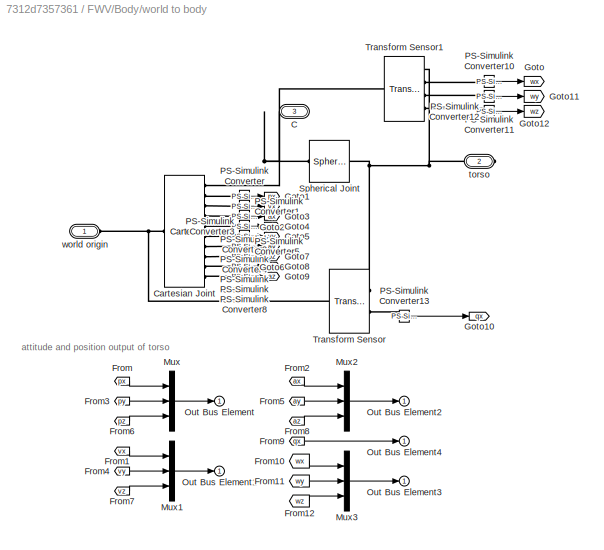
BLOCK [SubSystem] FWV/Body/world to body
  PortSchema = {"entries":[{"content":{"sides":[{"content":{"connectorIds":["LConn1","LConn2"]},"type":"ConnectorPlacement.EquallySpacedRectSide","uuid":"67e08b7d-27a7-478e-aa2b-0a29cfb8c4ba"},{"content":{"connectorIds":["RConn1","Out1"],"side":"RIGHT"},"type":"ConnectorPlacement.EquallySpacedRectSide","uuid":"af848fd7-c404-4734-a34f-7cffff1411b1"},{"content":{"connectorIds":[],"side":"TOP"},"type":"ConnectorPla...<+261ch>
  Ports = [0, 1, 0, 0, 0, 2, 1]
  RequestExecContextInheritance = off
BLOCK [PMIOPort] FWV/Body/world to body/C
  Port = 3
  Side = Left
BLOCK [Reference] FWV/Body/world to body/Cartesian Joint  REF=sm_lib/Joints/Cartesian
Joint
  Ports = [0, 0, 0, 0, 0, 1, 10]
  SourceBlock = sm_lib/Joints/Cartesian\nJoint
  SourceProductBaseCode = MS
  SourceType = Cartesian\nJoint
BLOCK [From] FWV/Body/world to body/From
  GotoTag = px
BLOCK [From] FWV/Body/world to body/From1
  GotoTag = vx
BLOCK [From] FWV/Body/world to body/From10
  GotoTag = wx
BLOCK [From] FWV/Body/world to body/From11
  GotoTag = wy
BLOCK [From] FWV/Body/world to body/From12
  GotoTag = wz
BLOCK [From] FWV/Body/world to body/From2
  GotoTag = ax
BLOCK [From] FWV/Body/world to body/From3
  GotoTag = py
BLOCK [From] FWV/Body/world to body/From4
  GotoTag = vy
BLOCK [From] FWV/Body/world to body/From5
  GotoTag = ay
BLOCK [From] FWV/Body/world to body/From6
  GotoTag = pz
BLOCK [From] FWV/Body/world to body/From7
  GotoTag = vz
BLOCK [From] FWV/Body/world to body/From8
  GotoTag = az
BLOCK [From] FWV/Body/world to body/From9
  GotoTag = qx
BLOCK [Goto] FWV/Body/world to body/Goto
  GotoTag = wx
BLOCK [Goto] FWV/Body/world to body/Goto1
  GotoTag = px
BLOCK [Goto] FWV/Body/world to body/Goto10
  GotoTag = qx
BLOCK [Goto] FWV/Body/world to body/Goto11
  GotoTag = wy
BLOCK [Goto] FWV/Body/world to body/Goto12
  GotoTag = wz
BLOCK [Goto] FWV/Body/world to body/Goto2
  GotoTag = vx
BLOCK [Goto] FWV/Body/world to body/Goto3
  GotoTag = ax
BLOCK [Goto] FWV/Body/world to body/Goto4
  GotoTag = py
BLOCK [Goto] FWV/Body/world to body/Goto5
  GotoTag = vy
BLOCK [Goto] FWV/Body/world to body/Goto6
  GotoTag = ay
BLOCK [Goto] FWV/Body/world to body/Goto7
  GotoTag = pz
BLOCK [Goto] FWV/Body/world to body/Goto8
  GotoTag = vz
BLOCK [Goto] FWV/Body/world to body/Goto9
  GotoTag = az
BLOCK [Mux] FWV/Body/world to body/Mux
  DisplayOption = bar
  Inputs = 3
  Ports = [3, 1]
BLOCK [Mux] FWV/Body/world to body/Mux1
  DisplayOption = bar
  Inputs = 3
  Ports = [3, 1]
BLOCK [Mux] FWV/Body/world to body/Mux2
  DisplayOption = bar
  Inputs = 3
  Ports = [3, 1]
BLOCK [Mux] FWV/Body/world to body/Mux3
  DisplayOption = bar
  Inputs = 3
  Ports = [3, 1]
BLOCK [Outport] FWV/Body/world to body/Out Bus Element
BLOCK [Outport] FWV/Body/world to body/Out Bus Element1
BLOCK [Outport] FWV/Body/world to body/Out Bus Element2
BLOCK [Outport] FWV/Body/world to body/Out Bus Element3
BLOCK [Outport] FWV/Body/world to body/Out Bus Element4
BLOCK [Reference] FWV/Body/world to body/PS-Simulink Converter  REF=nesl_utility/PS-Simulink
Converter
  Ports = [0, 1, 0, 0, 0, 1]
  SourceBlock = nesl_utility/PS-Simulink\nConverter
  SourceProductBaseCode = PW,SS
  SourceType = PS-Simulink\nConverter
BLOCK [Reference] FWV/Body/world to body/PS-Simulink Converter1  REF=nesl_utility/PS-Simulink
Converter
  Ports = [0, 1, 0, 0, 0, 1]
  SourceBlock = nesl_utility/PS-Simulink\nConverter
  SourceProductBaseCode = PW,SS
  SourceType = PS-Simulink\nConverter
BLOCK [Reference] FWV/Body/world to body/PS-Simulink Converter10  REF=nesl_utility/PS-Simulink
Converter
  Ports = [0, 1, 0, 0, 0, 1]
  SourceBlock = nesl_utility/PS-Simulink\nConverter
  SourceProductBaseCode = PW,SS
  SourceType = PS-Simulink\nConverter
BLOCK [Reference] FWV/Body/world to body/PS-Simulink Converter11  REF=nesl_utility/PS-Simulink
Converter
  Ports = [0, 1, 0, 0, 0, 1]
  SourceBlock = nesl_utility/PS-Simulink\nConverter
  SourceProductBaseCode = PW,SS
  SourceType = PS-Simulink\nConverter
BLOCK [Reference] FWV/Body/world to body/PS-Simulink Converter12  REF=nesl_utility/PS-Simulink
Converter
  Ports = [0, 1, 0, 0, 0, 1]
  SourceBlock = nesl_utility/PS-Simulink\nConverter
  SourceProductBaseCode = PW,SS
  SourceType = PS-Simulink\nConverter
BLOCK [Reference] FWV/Body/world to body/PS-Simulink Converter13  REF=nesl_utility/PS-Simulink
Converter
  Ports = [0, 1, 0, 0, 0, 1]
  SourceBlock = nesl_utility/PS-Simulink\nConverter
  SourceProductBaseCode = PW,SS
  SourceType = PS-Simulink\nConverter
BLOCK [Reference] FWV/Body/world to body/PS-Simulink Converter2  REF=nesl_utility/PS-Simulink
Converter
  Ports = [0, 1, 0, 0, 0, 1]
  SourceBlock = nesl_utility/PS-Simulink\nConverter
  SourceProductBaseCode = PW,SS
  SourceType = PS-Simulink\nConverter
BLOCK [Reference] FWV/Body/world to body/PS-Simulink Converter3  REF=nesl_utility/PS-Simulink
Converter
  Ports = [0, 1, 0, 0, 0, 1]
  SourceBlock = nesl_utility/PS-Simulink\nConverter
  SourceProductBaseCode = PW,SS
  SourceType = PS-Simulink\nConverter
BLOCK [Reference] FWV/Body/world to body/PS-Simulink Converter4  REF=nesl_utility/PS-Simulink
Converter
  Ports = [0, 1, 0, 0, 0, 1]
  SourceBlock = nesl_utility/PS-Simulink\nConverter
  SourceProductBaseCode = PW,SS
  SourceType = PS-Simulink\nConverter
BLOCK [Reference] FWV/Body/world to body/PS-Simulink Converter5  REF=nesl_utility/PS-Simulink
Converter
  Ports = [0, 1, 0, 0, 0, 1]
  SourceBlock = nesl_utility/PS-Simulink\nConverter
  SourceProductBaseCode = PW,SS
  SourceType = PS-Simulink\nConverter
BLOCK [Reference] FWV/Body/world to body/PS-Simulink Converter6  REF=nesl_utility/PS-Simulink
Converter
  Ports = [0, 1, 0, 0, 0, 1]
  SourceBlock = nesl_utility/PS-Simulink\nConverter
  SourceProductBaseCode = PW,SS
  SourceType = PS-Simulink\nConverter
BLOCK [Reference] FWV/Body/world to body/PS-Simulink Converter7  REF=nesl_utility/PS-Simulink
Converter
  Ports = [0, 1, 0, 0, 0, 1]
  SourceBlock = nesl_utility/PS-Simulink\nConverter
  SourceProductBaseCode = PW,SS
  SourceType = PS-Simulink\nConverter
BLOCK [Reference] FWV/Body/world to body/PS-Simulink Converter8  REF=nesl_utility/PS-Simulink
Converter
  Ports = [0, 1, 0, 0, 0, 1]
  SourceBlock = nesl_utility/PS-Simulink\nConverter
  SourceProductBaseCode = PW,SS
  SourceType = PS-Simulink\nConverter
BLOCK [Reference] FWV/Body/world to body/Spherical Joint  REF=sm_lib/Joints/Spherical
Joint
  Ports = [0, 0, 0, 0, 0, 1, 1]
  SourceBlock = sm_lib/Joints/Spherical\nJoint
  SourceProductBaseCode = MS
  SourceType = Spherical\nJoint
BLOCK [Reference] FWV/Body/world to body/Transform Sensor  REF=sm_lib/Frames and
Transforms/Transform
Sensor
  Ports = [0, 0, 0, 0, 0, 1, 2]
  SourceBlock = sm_lib/Frames and\nTransforms/Transform\nSensor
  SourceProductBaseCode = MS
  SourceType = Transform\nSensor
BLOCK [Reference] FWV/Body/world to body/Transform Sensor1  REF=sm_lib/Frames and
Transforms/Transform
Sensor
  Ports = [0, 0, 0, 0, 0, 1, 4]
  SourceBlock = sm_lib/Frames and\nTransforms/Transform\nSensor
  SourceProductBaseCode = MS
  SourceType = Transform\nSensor
BLOCK [PMIOPort] FWV/Body/world to body/torso
  Port = 2
  Side = Right
BLOCK [PMIOPort] FWV/Body/world to body/world origin
  Side = Left
BLOCK [SubSystem] FWV/Controller
  Ports = [2, 1]
  RequestExecContextInheritance = off
BLOCK [Sum] FWV/Controller/Add
  IconShape = rectangular
  Inputs = +++
  Ports = [3, 1]
BLOCK [Inport] FWV/Controller/Bus Element In1
BLOCK [Inport] FWV/Controller/Bus Element In2
BLOCK [Inport] FWV/Controller/Bus Element In3
BLOCK [Inport] FWV/Controller/Bus Element In5
BLOCK [Demux] FWV/Controller/Demux
  Outputs = 3
  Ports = [1, 3]
BLOCK [Demux] FWV/Controller/Demux1
  Outputs = 3
  Ports = [1, 3]
BLOCK [Demux] FWV/Controller/Demux2
  Outputs = 2
  Ports = [1, 2]
BLOCK [Gain] FWV/Controller/Gain
  Gain = [0;0;1]
BLOCK [SubSystem] FWV/Controller/Inner PD
  Ports = [2, 1]
  RequestExecContextInheritance = off
BLOCK [Sum] FWV/Controller/Inner PD/Add
  IconShape = rectangular
  Inputs = ---
  Ports = [3, 1]
BLOCK [Integrator] FWV/Controller/Inner PD/Integrator
  Commented = on
  InitialCondition = [0; 0; 0]
  Ports = [1, 1]
BLOCK [Constant] FWV/Controller/Inner PD/Kd
  Value = diag(il.Kd)
BLOCK [Constant] FWV/Controller/Inner PD/Kp
  Value = diag(il.Kp)
BLOCK [Gain] FWV/Controller/Inner PD/Multiply
  Commented = on
  Gain = [0.1 0.1 0]
BLOCK [Product] FWV/Controller/Inner PD/Product
  Multiplication = Matrix(*)
  Ports = [2, 1]
BLOCK [Product] FWV/Controller/Inner PD/Product1
  Multiplication = Matrix(*)
  Ports = [2, 1]
BLOCK [Scope] FWV/Controller/Inner PD/Scope
  Floating = off
  NumInputPorts = 2
  Ports = [2]
  ScopeSpecificationString = Simulink.scopes.TimeScopeBlockCfg('CurrentConfiguration', extmgr.ConfigurationSet(extmgr.Configuration('Core','General UI',true),extmgr.Configuration('Core','Source UI',true),extmgr.Configuration('Sources','WiredSimulink',true,'DataLoggingVariableName','ScopeData1'),extmgr.Configuration('Visuals','Time Domain',true,'SerializedDisplays',{struct('MinYLimReal','-0.4874','MaxYLimReal','1.06201','YLabe...<+1516ch>
BLOCK [Selector] FWV/Controller/Inner PD/Selector
  IndexOptions = Index vector (dialog)
  Indices = [2]
  InputPortWidth = 3
  OutputSizes = 1
  Ports = [1, 1]
BLOCK [Selector] FWV/Controller/Inner PD/Selector1
  IndexOptions = Index vector (dialog)
  Indices = [2]
  InputPortWidth = 3
  OutputSizes = 1
  Ports = [1, 1]
BLOCK [Inport] FWV/Controller/Inner PD/eR
BLOCK [SubSystem] FWV/Controller/Inner PD/get P
  Ports = [1, 1]
  RequestExecContextInheritance = off
BLOCK [Sum] FWV/Controller/Inner PD/get P/Add
  IconShape = rectangular
  Inputs = +++
  Ports = [3, 1]
BLOCK [Reference] FWV/Controller/Inner PD/get P/Cross Product  REF=vrlib/Utilities/Cross Product
  Ports = [2, 1]
  SourceBlock = vrlib/Utilities/Cross Product
  SourceProductBaseCode = SL
  SourceType = Cross Product
BLOCK [Reference] FWV/Controller/Inner PD/get P/Cross Product1  REF=vrlib/Utilities/Cross Product
  Ports = [2, 1]
  SourceBlock = vrlib/Utilities/Cross Product
  SourceProductBaseCode = SL
  SourceType = Cross Product
BLOCK [Reference] FWV/Controller/Inner PD/get P/Cross Product2  REF=vrlib/Utilities/Cross Product
  Ports = [2, 1]
  SourceBlock = vrlib/Utilities/Cross Product
  SourceProductBaseCode = SL
  SourceType = Cross Product
BLOCK [Constant] FWV/Controller/Inner PD/get P/One
  OutDataTypeStr = Inherit: Inherit via back propagation
  Value = [1;0;0]
BLOCK [Constant] FWV/Controller/Inner PD/get P/One1
  OutDataTypeStr = Inherit: Inherit via back propagation
  Value = [0;1;0]
BLOCK [Constant] FWV/Controller/Inner PD/get P/One2
  OutDataTypeStr = Inherit: Inherit via back propagation
  Value = [0;0;1]
BLOCK [Outport] FWV/Controller/Inner PD/get P/Out
BLOCK [Product] FWV/Controller/Inner PD/get P/Product
  Multiplication = Matrix(*)
  Ports = [2, 1]
BLOCK [Product] FWV/Controller/Inner PD/get P/Product1
  Multiplication = Matrix(*)
  Ports = [2, 1]
BLOCK [Product] FWV/Controller/Inner PD/get P/Product2
  Multiplication = Matrix(*)
  Ports = [2, 1]
BLOCK [Inport] FWV/Controller/Inner PD/get P/eR
BLOCK [Inport] FWV/Controller/Inner PD/omega
  Port = 2
BLOCK [Outport] FWV/Controller/Inner PD/tau_d
BLOCK [SubSystem] FWV/Controller/Inner PD/to euler1
  Ports = [1]
  RequestExecContextInheritance = off
BLOCK [Inport] FWV/Controller/Inner PD/to euler1/R
BLOCK [SubSystem] FWV/Controller/Inner PD/to euler1/R to X-Y-Z Extrinsic
  Ports = [1, 3]
  RequestExecContextInheritance = off
BLOCK [Trigonometry] FWV/Controller/Inner PD/to euler1/R to X-Y-Z Extrinsic/Asin
  Operator = asin
  Ports = [1, 1]
BLOCK [Trigonometry] FWV/Controller/Inner PD/to euler1/R to X-Y-Z Extrinsic/Atan1
  Operator = atan2
  Ports = [2, 1]
BLOCK [Trigonometry] FWV/Controller/Inner PD/to euler1/R to X-Y-Z Extrinsic/Atan2
  Operator = atan2
  Ports = [2, 1]
BLOCK [Demux] FWV/Controller/Inner PD/to euler1/R to X-Y-Z Extrinsic/Demux
  Outputs = 2
  Ports = [1, 2]
BLOCK [Demux] FWV/Controller/Inner PD/to euler1/R to X-Y-Z Extrinsic/Demux1
  Outputs = 2
  Ports = [1, 2]
BLOCK [Gain] FWV/Controller/Inner PD/to euler1/R to X-Y-Z Extrinsic/Multiply2
  Gain = -1
BLOCK [Inport] FWV/Controller/Inner PD/to euler1/R to X-Y-Z Extrinsic/R
BLOCK [Selector] FWV/Controller/Inner PD/to euler1/R to X-Y-Z Extrinsic/R(3, 1)
  IndexOptions = Index vector (dialog),Index vector (dialog)
  Indices = 3,1
  InputPortWidth = 3
  NumberOfDimensions = 2
  OutputSizes = 1,1
  Ports = [1, 1]
BLOCK [Selector] FWV/Controller/Inner PD/to euler1/R to X-Y-Z Extrinsic/R(3, 2:3)
  IndexOptions = Index vector (dialog),Index vector (dialog)
  Indices = 3,[2 3]
  InputPortWidth = 3
  NumberOfDimensions = 2
  OutputSizes = 1,1
  Ports = [1, 1]
BLOCK [Selector] FWV/Controller/Inner PD/to euler1/R to X-Y-Z Extrinsic/R([2 1], 1)
  IndexOptions = Index vector (dialog),Index vector (dialog)
  Indices = [2 1],1
  InputPortWidth = 3
  NumberOfDimensions = 2
  OutputSizes = 1,1
  Ports = [1, 1]
BLOCK [Reshape] FWV/Controller/Inner PD/to euler1/R to X-Y-Z Extrinsic/Reshape
  Ports = [1, 1]
BLOCK [Reshape] FWV/Controller/Inner PD/to euler1/R to X-Y-Z Extrinsic/Reshape1
  Ports = [1, 1]
BLOCK [Reshape] FWV/Controller/Inner PD/to euler1/R to X-Y-Z Extrinsic/Reshape2
  OutputDimensionality = Customize
  OutputDimensions = 1
  Ports = [1, 1]
BLOCK [Outport] FWV/Controller/Inner PD/to euler1/R to X-Y-Z Extrinsic/pitch
  Port = 2
  VectorParamsAs1DForOutWhenUnconnected = off
BLOCK [Outport] FWV/Controller/Inner PD/to euler1/R to X-Y-Z Extrinsic/roll
  VectorParamsAs1DForOutWhenUnconnected = off
BLOCK [Outport] FWV/Controller/Inner PD/to euler1/R to X-Y-Z Extrinsic/yaw
  Port = 3
  VectorParamsAs1DForOutWhenUnconnected = off
BLOCK [Terminator] FWV/Controller/Inner PD/to euler1/Terminator
BLOCK [Mux] FWV/Controller/Inner PD/to euler1/euler angle differences
  DisplayOption = bar
  Inputs = 3
  Ports = [3, 1]
BLOCK [SubSystem] FWV/Controller/MATLAB Function
  ErrorFcn = Stateflow.Translate.translate
  PermitHierarchicalResolution = ExplicitOnly
  Ports = [3, 2]
  RequestExecContextInheritance = off
  SFBlockType = MATLAB Function
  TreatAsAtomicUnit = on
BLOCK [Demux] FWV/Controller/MATLAB Function/ Demux 
  Outputs = 1
  Ports = [1, 1]
BLOCK [S-Function] FWV/Controller/MATLAB Function/ SFunction 
  EnableBusSupport = on
  FunctionName = sf_sfun
  PortCounts = [3 3]
  Ports = [3, 3]
  SFcnIsStateOwnerBlock = off
  SFunctionDeploymentMode = off
  Tag = Stateflow S-Function 2
BLOCK [Terminator] FWV/Controller/MATLAB Function/ Terminator 
BLOCK [Outport] FWV/Controller/MATLAB Function/Rd
BLOCK [Outport] FWV/Controller/MATLAB Function/amp
  Port = 2
BLOCK [Inport] FWV/Controller/MATLAB Function/heading
  Port = 3
BLOCK [Inport] FWV/Controller/MATLAB Function/k_hat
  Port = 2
BLOCK [Inport] FWV/Controller/MATLAB Function/mu
BLOCK [Product] FWV/Controller/Matrix Multiply1
  Multiplication = Matrix(*)
  Ports = [2, 1]
BLOCK [SubSystem] FWV/Controller/Mean3
  Ports = [1, 1]
  RequestExecContextInheritance = off
BLOCK [Sum] FWV/Controller/Mean3/Add
  IconShape = rectangular
  Inputs = +-
  Ports = [2, 1]
BLOCK [Gain] FWV/Controller/Mean3/Gain
  Gain = 1/0.04
BLOCK [Inport] FWV/Controller/Mean3/In1
BLOCK [Integrator] FWV/Controller/Mean3/Integrator
  Ports = [1, 1]
  ZeroCross = off
BLOCK [Outport] FWV/Controller/Mean3/Mean1
BLOCK [TransportDelay] FWV/Controller/Mean3/Transport Delay
  BufferSize = 4096
  DelayTime = 0.04
  InitialOutput = p0
  Ports = [1, 1]
BLOCK [SubSystem] FWV/Controller/Mean4
  Ports = [1, 1]
  RequestExecContextInheritance = off
BLOCK [Sum] FWV/Controller/Mean4/Add
  IconShape = rectangular
  Inputs = +-
  Ports = [2, 1]
BLOCK [Gain] FWV/Controller/Mean4/Gain
  Gain = 1/0.04
BLOCK [Inport] FWV/Controller/Mean4/In1
BLOCK [Integrator] FWV/Controller/Mean4/Integrator
  Ports = [1, 1]
  ZeroCross = off
BLOCK [Outport] FWV/Controller/Mean4/Mean1
BLOCK [TransportDelay] FWV/Controller/Mean4/Transport Delay
  BufferSize = 4096
  DelayTime = 0.04
  InitialOutput = [0;0;0]
  Ports = [1, 1]
BLOCK [SubSystem] FWV/Controller/Mean5
  Ports = [1, 1]
  RequestExecContextInheritance = off
BLOCK [Sum] FWV/Controller/Mean5/Add
  IconShape = rectangular
  Inputs = +-
  Ports = [2, 1]
BLOCK [Gain] FWV/Controller/Mean5/Gain
  Gain = 1/0.04
BLOCK [Inport] FWV/Controller/Mean5/In1
BLOCK [Integrator] FWV/Controller/Mean5/Integrator
  Ports = [1, 1]
  ZeroCross = off
BLOCK [Outport] FWV/Controller/Mean5/Mean1
BLOCK [TransportDelay] FWV/Controller/Mean5/Transport Delay
  BufferSize = 4096
  DelayTime = 0.04
  InitialOutput = [0;0;0]
  Ports = [1, 1]
BLOCK [Gain] FWV/Controller/Multiply
BLOCK [Outport] FWV/Controller/Out Bus Element
BLOCK [Outport] FWV/Controller/Out Bus Element1
BLOCK [Outport] FWV/Controller/Out Bus Element2
BLOCK [Outport] FWV/Controller/Out Bus Element3
BLOCK [SubSystem] FWV/Controller/Outer PD
  Ports = [2, 1]
  RequestExecContextInheritance = off
BLOCK [Demux] FWV/Controller/Outer PD/Demux
  Outputs = 3
  Ports = [1, 3]
BLOCK [Demux] FWV/Controller/Outer PD/Demux1
  Outputs = 3
  Ports = [1, 3]
BLOCK [Mux] FWV/Controller/Outer PD/Mux
  DisplayOption = bar
  Inputs = 3
  Ports = [3, 1]
BLOCK [Inport] FWV/Controller/Outer PD/ep
BLOCK [Inport] FWV/Controller/Outer PD/ev
  Port = 2
BLOCK [Outport] FWV/Controller/Outer PD/mu
BLOCK [SubSystem] FWV/Controller/Outer PD/x PD
  Ports = [2, 1]
  RequestExecContextInheritance = off
BLOCK [Sum] FWV/Controller/Outer PD/x PD/Add
  IconShape = rectangular
  Inputs = +++
  Ports = [3, 1]
BLOCK [Constant] FWV/Controller/Outer PD/x PD/Constant
  Value = ol.Kp(1)
BLOCK [Constant] FWV/Controller/Outer PD/x PD/Constant1
  Value = 0
BLOCK [Constant] FWV/Controller/Outer PD/x PD/Constant2
  Value = ol.Kd(1)
BLOCK [Inport] FWV/Controller/Outer PD/x PD/In1
BLOCK [Inport] FWV/Controller/Outer PD/x PD/In2
  Port = 2
BLOCK [Integrator] FWV/Controller/Outer PD/x PD/Integrator Limited
  LowerSaturationLimit = 0
  Ports = [1, 1]
  UpperSaturationLimit = 1
BLOCK [Outport] FWV/Controller/Outer PD/x PD/Out1
BLOCK [Product] FWV/Controller/Outer PD/x PD/Product
  Ports = [2, 1]
BLOCK [Product] FWV/Controller/Outer PD/x PD/Product1
  Ports = [2, 1]
BLOCK [Product] FWV/Controller/Outer PD/x PD/Product2
  Ports = [2, 1]
BLOCK [SubSystem] FWV/Controller/Outer PD/y PD
  Ports = [2, 1]
  RequestExecContextInheritance = off
BLOCK [Sum] FWV/Controller/Outer PD/y PD/Add
  IconShape = rectangular
  Inputs = +++
  Ports = [3, 1]
BLOCK [Constant] FWV/Controller/Outer PD/y PD/Constant
  Value = ol.Kp(2)
BLOCK [Constant] FWV/Controller/Outer PD/y PD/Constant1
  Value = 0
BLOCK [Constant] FWV/Controller/Outer PD/y PD/Constant2
  Value = ol.Kd(2)
BLOCK [Inport] FWV/Controller/Outer PD/y PD/In1
BLOCK [Inport] FWV/Controller/Outer PD/y PD/In2
  Port = 2
BLOCK [Integrator] FWV/Controller/Outer PD/y PD/Integrator Limited
  LowerSaturationLimit = 0
  Ports = [1, 1]
  UpperSaturationLimit = 1
BLOCK [Outport] FWV/Controller/Outer PD/y PD/Out1
BLOCK [Product] FWV/Controller/Outer PD/y PD/Product
  Ports = [2, 1]
BLOCK [Product] FWV/Controller/Outer PD/y PD/Product1
  Ports = [2, 1]
BLOCK [Product] FWV/Controller/Outer PD/y PD/Product2
  Ports = [2, 1]
BLOCK [SubSystem] FWV/Controller/Outer PD/z PD
  Ports = [2, 1]
  RequestExecContextInheritance = off
BLOCK [Sum] FWV/Controller/Outer PD/z PD/Add
  IconShape = rectangular
  Inputs = +++
  Ports = [3, 1]
BLOCK [Constant] FWV/Controller/Outer PD/z PD/Constant
  Value = ol.Kp(3)
BLOCK [Constant] FWV/Controller/Outer PD/z PD/Constant1
  Value = 0
BLOCK [Constant] FWV/Controller/Outer PD/z PD/Constant2
  Value = ol.Kd(3)
BLOCK [Inport] FWV/Controller/Outer PD/z PD/In1
BLOCK [Inport] FWV/Controller/Outer PD/z PD/In2
  Port = 2
BLOCK [Integrator] FWV/Controller/Outer PD/z PD/Integrator Limited
  LowerSaturationLimit = -5
  Ports = [1, 1]
  UpperSaturationLimit = 5
BLOCK [Outport] FWV/Controller/Outer PD/z PD/Out1
BLOCK [Product] FWV/Controller/Outer PD/z PD/Product
  Ports = [2, 1]
BLOCK [Product] FWV/Controller/Outer PD/z PD/Product1
  Ports = [2, 1]
BLOCK [Product] FWV/Controller/Outer PD/z PD/Product2
  Ports = [2, 1]
BLOCK [SubSystem] FWV/Controller/R to euler
  Ports = [1]
  RequestExecContextInheritance = off
BLOCK [Mux] FWV/Controller/R to euler/Mux
  DisplayOption = bar
  Inputs = 3
  Ports = [3, 1]
BLOCK [Inport] FWV/Controller/R to euler/R
BLOCK [SubSystem] FWV/Controller/R to euler/R to X-Y-Z Extrinsic
  Ports = [1, 3]
  RequestExecContextInheritance = off
BLOCK [Trigonometry] FWV/Controller/R to euler/R to X-Y-Z Extrinsic/Asin
  Operator = asin
  Ports = [1, 1]
BLOCK [Trigonometry] FWV/Controller/R to euler/R to X-Y-Z Extrinsic/Atan1
  Operator = atan2
  Ports = [2, 1]
BLOCK [Trigonometry] FWV/Controller/R to euler/R to X-Y-Z Extrinsic/Atan2
  Operator = atan2
  Ports = [2, 1]
BLOCK [Demux] FWV/Controller/R to euler/R to X-Y-Z Extrinsic/Demux
  Outputs = 2
  Ports = [1, 2]
BLOCK [Demux] FWV/Controller/R to euler/R to X-Y-Z Extrinsic/Demux1
  Outputs = 2
  Ports = [1, 2]
BLOCK [Gain] FWV/Controller/R to euler/R to X-Y-Z Extrinsic/Multiply2
  Gain = -1
BLOCK [Inport] FWV/Controller/R to euler/R to X-Y-Z Extrinsic/R
BLOCK [Selector] FWV/Controller/R to euler/R to X-Y-Z Extrinsic/R(3, 1)
  IndexOptions = Index vector (dialog),Index vector (dialog)
  Indices = 3,1
  InputPortWidth = 3
  NumberOfDimensions = 2
  OutputSizes = 1,1
  Ports = [1, 1]
BLOCK [Selector] FWV/Controller/R to euler/R to X-Y-Z Extrinsic/R(3, 2:3)
  IndexOptions = Index vector (dialog),Index vector (dialog)
  Indices = 3,[2 3]
  InputPortWidth = 3
  NumberOfDimensions = 2
  OutputSizes = 1,1
  Ports = [1, 1]
BLOCK [Selector] FWV/Controller/R to euler/R to X-Y-Z Extrinsic/R([2 1], 1)
  IndexOptions = Index vector (dialog),Index vector (dialog)
  Indices = [2 1],1
  InputPortWidth = 3
  NumberOfDimensions = 2
  OutputSizes = 1,1
  Ports = [1, 1]
BLOCK [Reshape] FWV/Controller/R to euler/R to X-Y-Z Extrinsic/Reshape
  Ports = [1, 1]
BLOCK [Reshape] FWV/Controller/R to euler/R to X-Y-Z Extrinsic/Reshape1
  Ports = [1, 1]
BLOCK [Reshape] FWV/Controller/R to euler/R to X-Y-Z Extrinsic/Reshape2
  OutputDimensionality = Customize
  OutputDimensions = 1
  Ports = [1, 1]
BLOCK [Outport] FWV/Controller/R to euler/R to X-Y-Z Extrinsic/pitch
  Port = 2
  VectorParamsAs1DForOutWhenUnconnected = off
BLOCK [Outport] FWV/Controller/R to euler/R to X-Y-Z Extrinsic/roll
  VectorParamsAs1DForOutWhenUnconnected = off
BLOCK [Outport] FWV/Controller/R to euler/R to X-Y-Z Extrinsic/yaw
  Port = 3
  VectorParamsAs1DForOutWhenUnconnected = off
BLOCK [Terminator] FWV/Controller/R to euler/Terminator
BLOCK [Gain] FWV/Controller/R to euler/rad2deg
  Gain = 180/pi
BLOCK [SubSystem] FWV/Controller/Rd to euler
  PortSchema = {"entries":[{"content":{"sides":[{"content":{"connectorIds":[]},"type":"ConnectorPlacement.EquallySpacedRectSide","uuid":"93de112d-0217-40d7-a336-17ea7cc4ed84"},{"content":{"connectorIds":["In1"],"side":"RIGHT"},"type":"ConnectorPlacement.EquallySpacedRectSide","uuid":"0b203bc8-f5c1-4f94-b862-0e0b0c3261f7"},{"content":{"connectorIds":[],"side":"TOP"},"type":"ConnectorPlacement.EquallySpacedRectSid...<+234ch>
  Ports = [1]
  RequestExecContextInheritance = off
BLOCK [Inport] FWV/Controller/Rd to euler/R
BLOCK [SubSystem] FWV/Controller/Rd to euler/R to X-Y-Z Extrinsic
  Ports = [1, 3]
  RequestExecContextInheritance = off
BLOCK [Trigonometry] FWV/Controller/Rd to euler/R to X-Y-Z Extrinsic/Asin
  Operator = asin
  Ports = [1, 1]
BLOCK [Trigonometry] FWV/Controller/Rd to euler/R to X-Y-Z Extrinsic/Atan1
  Operator = atan2
  Ports = [2, 1]
BLOCK [Trigonometry] FWV/Controller/Rd to euler/R to X-Y-Z Extrinsic/Atan2
  Operator = atan2
  Ports = [2, 1]
BLOCK [Demux] FWV/Controller/Rd to euler/R to X-Y-Z Extrinsic/Demux
  Outputs = 2
  Ports = [1, 2]
BLOCK [Demux] FWV/Controller/Rd to euler/R to X-Y-Z Extrinsic/Demux1
  Outputs = 2
  Ports = [1, 2]
BLOCK [Gain] FWV/Controller/Rd to euler/R to X-Y-Z Extrinsic/Multiply2
  Gain = -1
BLOCK [Inport] FWV/Controller/Rd to euler/R to X-Y-Z Extrinsic/R
BLOCK [Selector] FWV/Controller/Rd to euler/R to X-Y-Z Extrinsic/R(3, 1)
  IndexOptions = Index vector (dialog),Index vector (dialog)
  Indices = 3,1
  InputPortWidth = 3
  NumberOfDimensions = 2
  OutputSizes = 1,1
  Ports = [1, 1]
BLOCK [Selector] FWV/Controller/Rd to euler/R to X-Y-Z Extrinsic/R(3, 2:3)
  IndexOptions = Index vector (dialog),Index vector (dialog)
  Indices = 3,[2 3]
  InputPortWidth = 3
  NumberOfDimensions = 2
  OutputSizes = 1,1
  Ports = [1, 1]
BLOCK [Selector] FWV/Controller/Rd to euler/R to X-Y-Z Extrinsic/R([2 1], 1)
  IndexOptions = Index vector (dialog),Index vector (dialog)
  Indices = [2 1],1
  InputPortWidth = 3
  NumberOfDimensions = 2
  OutputSizes = 1,1
  Ports = [1, 1]
BLOCK [Reshape] FWV/Controller/Rd to euler/R to X-Y-Z Extrinsic/Reshape
  Ports = [1, 1]
BLOCK [Reshape] FWV/Controller/Rd to euler/R to X-Y-Z Extrinsic/Reshape1
  Ports = [1, 1]
BLOCK [Reshape] FWV/Controller/Rd to euler/R to X-Y-Z Extrinsic/Reshape2
  OutputDimensionality = Customize
  OutputDimensions = 1
  Ports = [1, 1]
BLOCK [Outport] FWV/Controller/Rd to euler/R to X-Y-Z Extrinsic/pitch
  Port = 2
  VectorParamsAs1DForOutWhenUnconnected = off
BLOCK [Outport] FWV/Controller/Rd to euler/R to X-Y-Z Extrinsic/roll
  VectorParamsAs1DForOutWhenUnconnected = off
BLOCK [Outport] FWV/Controller/Rd to euler/R to X-Y-Z Extrinsic/yaw
  Port = 3
  VectorParamsAs1DForOutWhenUnconnected = off
BLOCK [Terminator] FWV/Controller/Rd to euler/Terminator
BLOCK [Mux] FWV/Controller/Rd to euler/dest euler angles
  DisplayOption = bar
  Inputs = 3
  Ports = [3, 1]
BLOCK [Sum] FWV/Controller/Sum
  Inputs = |-+
  Ports = [2, 1]
BLOCK [Sum] FWV/Controller/Sum1
  Inputs = |-+
  Ports = [2, 1]
BLOCK [Sum] FWV/Controller/Sum2
  Inputs = |+-
  Ports = [2, 1]
BLOCK [Inport] FWV/Controller/Traj
  Port = 2
BLOCK [Math] FWV/Controller/Transpose1
  Operator = transpose
  Ports = [1, 1]
BLOCK [SubSystem] FWV/Controller/adaptive mapping estimator
  Ports = [1, 1]
  RequestExecContextInheritance = off
BLOCK [Integrator] FWV/Controller/adaptive mapping estimator/Integrator
  InitialCondition = 0.05
  Ports = [1, 1]
BLOCK [Outport] FWV/Controller/adaptive mapping estimator/k_hat
BLOCK [Inport] FWV/Controller/adaptive mapping estimator/mu
BLOCK [SubSystem] FWV/Controller/adaptive mapping estimator/update k_hat
  ErrorFcn = Stateflow.Translate.translate
  PermitHierarchicalResolution = ExplicitOnly
  Ports = [2, 1]
  RequestExecContextInheritance = off
  SFBlockType = MATLAB Function
  TreatAsAtomicUnit = on
BLOCK [Demux] FWV/Controller/adaptive mapping estimator/update k_hat/ Demux 
  Outputs = 1
  Ports = [1, 1]
BLOCK [S-Function] FWV/Controller/adaptive mapping estimator/update k_hat/ SFunction 
  EnableBusSupport = on
  FunctionName = sf_sfun
  PortCounts = [2 2]
  Ports = [2, 2]
  SFcnIsStateOwnerBlock = off
  SFunctionDeploymentMode = off
  Tag = Stateflow S-Function 5
BLOCK [Terminator] FWV/Controller/adaptive mapping estimator/update k_hat/ Terminator 
BLOCK [Inport] FWV/Controller/adaptive mapping estimator/update k_hat/k_hat
  Port = 2
BLOCK [Outport] FWV/Controller/adaptive mapping estimator/update k_hat/k_hat_dot
BLOCK [Inport] FWV/Controller/adaptive mapping estimator/update k_hat/mu
BLOCK [SubSystem] FWV/Controller/adaptive mapping estimator1
  PortSchema = {"entries":[{"content":{"sides":[{"content":{"connectorIds":["In1"]},"type":"ConnectorPlacement.EquallySpacedRectSide","uuid":"ad990f9c-fb26-46a0-b20f-9b75f9cabb9c"},{"content":{"connectorIds":["Out1"],"side":"RIGHT"},"type":"ConnectorPlacement.EquallySpacedRectSide","uuid":"f73f0012-14a6-4c3b-b3ee-1c6141b5dee9"},{"content":{"connectorIds":["In2"],"side":"TOP"},"type":"ConnectorPlacement.EquallySp...<+245ch>
  Ports = [2, 1]
  RequestExecContextInheritance = off
BLOCK [Outport] FWV/Controller/adaptive mapping estimator1/Delta_mu
BLOCK [Integrator] FWV/Controller/adaptive mapping estimator1/Integrator
  InitialCondition = [0; 0; 0]
  Ports = [1, 1]
BLOCK [SubSystem] FWV/Controller/adaptive mapping estimator1/MATLAB Function
  ErrorFcn = Stateflow.Translate.translate
  PermitHierarchicalResolution = ExplicitOnly
  Ports = [2, 1]
  RequestExecContextInheritance = off
  SFBlockType = MATLAB Function
  TreatAsAtomicUnit = on
BLOCK [Demux] FWV/Controller/adaptive mapping estimator1/MATLAB Function/ Demux 
  Outputs = 1
  Ports = [1, 1]
BLOCK [S-Function] FWV/Controller/adaptive mapping estimator1/MATLAB Function/ SFunction 
  EnableBusSupport = on
  FunctionName = sf_sfun
  Parameters = adpk,adps
  PortCounts = [2 2]
  Ports = [2, 2]
  SFcnIsStateOwnerBlock = off
  SFunctionDeploymentMode = off
  Tag = Stateflow S-Function 6
BLOCK [Terminator] FWV/Controller/adaptive mapping estimator1/MATLAB Function/ Terminator 
BLOCK [Outport] FWV/Controller/adaptive mapping estimator1/MATLAB Function/k_dot
BLOCK [Inport] FWV/Controller/adaptive mapping estimator1/MATLAB Function/mu
BLOCK [Inport] FWV/Controller/adaptive mapping estimator1/MATLAB Function/vd
  Port = 2
BLOCK [Inport] FWV/Controller/adaptive mapping estimator1/mu
  Port = 2
BLOCK [Inport] FWV/Controller/adaptive mapping estimator1/vd
BLOCK [SubSystem] FWV/Controller/averaged R to euler
  Ports = [1]
  RequestExecContextInheritance = off
BLOCK [Inport] FWV/Controller/averaged R to euler/R
BLOCK [SubSystem] FWV/Controller/averaged R to euler/R to X-Y-Z Extrinsic
  Ports = [1, 3]
  RequestExecContextInheritance = off
BLOCK [Trigonometry] FWV/Controller/averaged R to euler/R to X-Y-Z Extrinsic/Asin
  Operator = asin
  Ports = [1, 1]
BLOCK [Trigonometry] FWV/Controller/averaged R to euler/R to X-Y-Z Extrinsic/Atan1
  Operator = atan2
  Ports = [2, 1]
BLOCK [Trigonometry] FWV/Controller/averaged R to euler/R to X-Y-Z Extrinsic/Atan2
  Operator = atan2
  Ports = [2, 1]
BLOCK [Demux] FWV/Controller/averaged R to euler/R to X-Y-Z Extrinsic/Demux
  Outputs = 2
  Ports = [1, 2]
BLOCK [Demux] FWV/Controller/averaged R to euler/R to X-Y-Z Extrinsic/Demux1
  Outputs = 2
  Ports = [1, 2]
BLOCK [Gain] FWV/Controller/averaged R to euler/R to X-Y-Z Extrinsic/Multiply2
  Gain = -1
BLOCK [Inport] FWV/Controller/averaged R to euler/R to X-Y-Z Extrinsic/R
BLOCK [Selector] FWV/Controller/averaged R to euler/R to X-Y-Z Extrinsic/R(3, 1)
  IndexOptions = Index vector (dialog),Index vector (dialog)
  Indices = 3,1
  InputPortWidth = 3
  NumberOfDimensions = 2
  OutputSizes = 1,1
  Ports = [1, 1]
BLOCK [Selector] FWV/Controller/averaged R to euler/R to X-Y-Z Extrinsic/R(3, 2:3)
  IndexOptions = Index vector (dialog),Index vector (dialog)
  Indices = 3,[2 3]
  InputPortWidth = 3
  NumberOfDimensions = 2
  OutputSizes = 1,1
  Ports = [1, 1]
BLOCK [Selector] FWV/Controller/averaged R to euler/R to X-Y-Z Extrinsic/R([2 1], 1)
  IndexOptions = Index vector (dialog),Index vector (dialog)
  Indices = [2 1],1
  InputPortWidth = 3
  NumberOfDimensions = 2
  OutputSizes = 1,1
  Ports = [1, 1]
BLOCK [Reshape] FWV/Controller/averaged R to euler/R to X-Y-Z Extrinsic/Reshape
  Ports = [1, 1]
BLOCK [Reshape] FWV/Controller/averaged R to euler/R to X-Y-Z Extrinsic/Reshape1
  Ports = [1, 1]
BLOCK [Reshape] FWV/Controller/averaged R to euler/R to X-Y-Z Extrinsic/Reshape2
  OutputDimensionality = Customize
  OutputDimensions = 1
  Ports = [1, 1]
BLOCK [Outport] FWV/Controller/averaged R to euler/R to X-Y-Z Extrinsic/pitch
  Port = 2
  VectorParamsAs1DForOutWhenUnconnected = off
BLOCK [Outport] FWV/Controller/averaged R to euler/R to X-Y-Z Extrinsic/roll
  VectorParamsAs1DForOutWhenUnconnected = off
BLOCK [Outport] FWV/Controller/averaged R to euler/R to X-Y-Z Extrinsic/yaw
  Port = 3
  VectorParamsAs1DForOutWhenUnconnected = off
BLOCK [Terminator] FWV/Controller/averaged R to euler/Terminator
BLOCK [Mux] FWV/Controller/averaged R to euler/averaged euler angles
  DisplayOption = bar
  Inputs = 3
  Ports = [3, 1]
BLOCK [SubSystem] FWV/Controller/period averaging
  Ports = [1, 1]
  RequestExecContextInheritance = off
BLOCK [SubSystem] FWV/Controller/period averaging/MATLAB Function
  ErrorFcn = Stateflow.Translate.translate
  PermitHierarchicalResolution = ExplicitOnly
  Ports = [1, 1]
  RequestExecContextInheritance = off
  SFBlockType = MATLAB Function
  TreatAsAtomicUnit = on
BLOCK [Demux] FWV/Controller/period averaging/MATLAB Function/ Demux 
  Outputs = 1
  Ports = [1, 1]
BLOCK [S-Function] FWV/Controller/period averaging/MATLAB Function/ SFunction 
  EnableBusSupport = on
  FunctionName = sf_sfun
  PortCounts = [1 2]
  Ports = [1, 2]
  SFcnIsStateOwnerBlock = off
  SFunctionDeploymentMode = off
  Tag = Stateflow S-Function 4
BLOCK [Terminator] FWV/Controller/period averaging/MATLAB Function/ Terminator 
BLOCK [Outport] FWV/Controller/period averaging/MATLAB Function/R_mean
BLOCK [Inport] FWV/Controller/period averaging/MATLAB Function/R_raw
BLOCK [SubSystem] FWV/Controller/period averaging/Mean
  Ports = [1, 1]
  RequestExecContextInheritance = off
BLOCK [Sum] FWV/Controller/period averaging/Mean/Add
  IconShape = rectangular
  Inputs = +-
  Ports = [2, 1]
BLOCK [Gain] FWV/Controller/period averaging/Mean/Gain
  Gain = 1/0.04
BLOCK [Inport] FWV/Controller/period averaging/Mean/In1
BLOCK [Integrator] FWV/Controller/period averaging/Mean/Integrator
  Ports = [1, 1]
  ZeroCross = off
BLOCK [Outport] FWV/Controller/period averaging/Mean/Out1
BLOCK [TransportDelay] FWV/Controller/period averaging/Mean/Transport Delay
  BufferSize = 4096
  DelayTime = 0.04
  InitialOutput = [cos(psi0),-sin(psi0),0;sin(psi0),cos(psi0),0;0,0,1]
  Ports = [1, 1]
BLOCK [Outport] FWV/Controller/period averaging/Mean1
BLOCK [Inport] FWV/Controller/period averaging/in
BLOCK [Selector] FWV/Controller/rot
  IndexOptions = Index vector (dialog)
  Indices = [4 8]
  InputPortWidth = 12
  OutputSizes = 1
  Ports = [1, 1]
BLOCK [Selector] FWV/Controller/trans
  IndexOptions = Index vector (dialog)
  Indices = [1 2 3 5 6 7 9 10 11]
  InputPortWidth = 12
  OutputSizes = 1
  Ports = [1, 1]
BLOCK [PMIOPort] FWV/G
  Port = 2
  Side = Right
BLOCK [SubSystem] FWV/Visualization
  Ports = [2]
  RequestExecContextInheritance = off
BLOCK [Inport] FWV/Visualization/Bus Element In1
BLOCK [Inport] FWV/Visualization/Bus Element In2
BLOCK [Demux] FWV/Visualization/Demux
  Outputs = 3
  Ports = [1, 3]
BLOCK [Mux] FWV/Visualization/Mux
  DisplayOption = bar
  Inputs = 2
  Ports = [2, 1]
BLOCK [Selector] FWV/Visualization/Selector
  IndexOptions = Index vector (dialog)
  Indices = [1 2 3 4]
  InputPortWidth = 12
  OutputSizes = 1
  Ports = [1, 1]
BLOCK [SubSystem] FWV/Visualization/Subsystem
  Ports = [1, 1]
  RequestExecContextInheritance = off
BLOCK [Trigonometry] FWV/Visualization/Subsystem/Atan1
  Operator = atan2
  Ports = [2, 1]
BLOCK [Demux] FWV/Visualization/Subsystem/Demux1
  Outputs = 2
  Ports = [1, 2]
BLOCK [Inport] FWV/Visualization/Subsystem/R
BLOCK [Selector] FWV/Visualization/Subsystem/R([2 1], 1)
  IndexOptions = Index vector (dialog),Index vector (dialog)
  Indices = [2 1],1
  InputPortWidth = 3
  NumberOfDimensions = 2
  OutputSizes = 1,1
  Ports = [1, 1]
BLOCK [Reshape] FWV/Visualization/Subsystem/Reshape
  Ports = [1, 1]
BLOCK [Outport] FWV/Visualization/Subsystem/yaw
  VectorParamsAs1DForOutWhenUnconnected = off
BLOCK [Terminator] FWV/Visualization/Terminator
BLOCK [ToWorkspace] FWV/Visualization/To Workspace
  FixptAsFi = on
  MaxDataPoints = inf
  Ports = [1]
  SampleTime = -1
  Save2DSignal = 2-D array (concatenate along first dimension)
  VariableName = q
BLOCK [ToWorkspace] FWV/Visualization/To Workspace1
  FixptAsFi = on
  MaxDataPoints = inf
  Ports = [1]
  SampleTime = -1
  Save2DSignal = 2-D array (concatenate along first dimension)
  VariableName = qd
BLOCK [Record] FWV/Visualization/XY Graph
  CompatibilityTag = XY
  FileSettingsInternal = {"entries":[{"content":{"excelSettings":{"content":{},"type":"Streamout.ExcelSettings"}},"type":"Streamout.FileSettingStorage","uuid":"19029464-581e-4519-a9f6-67a58b5b982f"}],"packageUris":["http://schema.mathworks.com/mf0/streamout_blocks/R2020a"],"version":"1.0"}
  Layout = [1 1]
  Ports = [2]
  SignalsInternal = {"entries":[{"content":{"signals":[{"content":{"blockPath":["fwv_modified/FWV/Visualization/XY Graph"],"channel":[],"dimensions":[1],"domain":"fwv_modified/FWV/Visualization/XY Graph","lineColor":"#fe330a","plots":[],"port":1,"sid":[""],"signalID":57716,"signalName":"Demux:1"},"type":"RecordBlkView.Signal","uuid":"5e3f2503-88e5-447b-a960-7ce6384f36fe"},{"content":{"blockPath":["fwv_modified/FWV/Vi...<+451ch>
  VisualizationBindings = {"xyplotplugin":{"info":[{"series":[],"subplotID":1}]}}
  st = -1
BLOCK [Inport] FWV/Visualization/traj
  Port = 2
BLOCK [PMIOPort] FWV/W
  Side = Right
BLOCK [Inport] FWV/traj
BLOCK [SubSystem] Ref
  Ports = [0, 1]
  RequestExecContextInheritance = off
BLOCK [Clock] Ref/Clock
BLOCK [Mux] Ref/Mux
  DisplayOption = bar
  Inputs = 6
  Ports = [6, 1]
BLOCK [ToWorkspace] Ref/To Workspace
  FixptAsFi = on
  MaxDataPoints = inf
  Ports = [1]
  SampleTime = -1
  VariableName = t
BLOCK [SubSystem] Ref/p,pdot,pddot
  ErrorFcn = Stateflow.Translate.translate
  PermitHierarchicalResolution = ExplicitOnly
  Ports = [1, 6]
  RequestExecContextInheritance = off
  SFBlockType = MATLAB Function
  TreatAsAtomicUnit = on
BLOCK [Demux] Ref/p,pdot,pddot/ Demux 
  Outputs = 1
  Ports = [1, 1]
BLOCK [S-Function] Ref/p,pdot,pddot/ SFunction 
  EnableBusSupport = on
  FunctionName = sf_sfun
  Parameters = SINGLE_MODE
  PortCounts = [1 7]
  Ports = [1, 7]
  SFcnIsStateOwnerBlock = off
  SFunctionDeploymentMode = off
  Tag = Stateflow S-Function 1
BLOCK [Terminator] Ref/p,pdot,pddot/ Terminator 
BLOCK [Outport] Ref/p,pdot,pddot/a
  Port = 5
BLOCK [Outport] Ref/p,pdot,pddot/heading
  Port = 2
BLOCK [Outport] Ref/p,pdot,pddot/heading_ddot
  Port = 6
BLOCK [Outport] Ref/p,pdot,pddot/heading_dot
  Port = 4
BLOCK [Outport] Ref/p,pdot,pddot/p
BLOCK [Inport] Ref/p,pdot,pddot/t
BLOCK [Outport] Ref/p,pdot,pddot/v
  Port = 3
BLOCK [Outport] Ref/traj
ANNOTATION FWV/Body/FUSELAGE: Contact Measurement
ANNOTATION FWV/Body/world to body: attitude and position output of torso
ANNOTATION FWV/Controller/Inner PD/to euler1/R to X-Y-Z Extrinsic: The sensor implemented here computes roll / pitch / yaw values assuming they correpsond to X, Y, and Z rotations, applied in that order and using *extrinsic* rotations. That is, the rotations are applied about the fixed (non-rotated) axes of the base frame. There are many other possible conventions, but the computations of angles has the same basic structure for any of them. The only differences w...<+349ch>
ANNOTATION FWV/Controller/R to euler/R to X-Y-Z Extrinsic: The sensor implemented here computes roll / pitch / yaw values assuming they correpsond to X, Y, and Z rotations, applied in that order and using *extrinsic* rotations. That is, the rotations are applied about the fixed (non-rotated) axes of the base frame. There are many other possible conventions, but the computations of angles has the same basic structure for any of them. The only differences w...<+349ch>
ANNOTATION FWV/Controller/Rd to euler/R to X-Y-Z Extrinsic: The sensor implemented here computes roll / pitch / yaw values assuming they correpsond to X, Y, and Z rotations, applied in that order and using *extrinsic* rotations. That is, the rotations are applied about the fixed (non-rotated) axes of the base frame. There are many other possible conventions, but the computations of angles has the same basic structure for any of them. The only differences w...<+349ch>
ANNOTATION FWV/Controller/averaged R to euler/R to X-Y-Z Extrinsic: The sensor implemented here computes roll / pitch / yaw values assuming they correpsond to X, Y, and Z rotations, applied in that order and using *extrinsic* rotations. That is, the rotations are applied about the fixed (non-rotated) axes of the base frame. There are many other possible conventions, but the computations of angles has the same basic structure for any of them. The only differences w...<+349ch>
LINE FWV/Body/Acuator/ left flap:1 -> FWV/Body/Acuator/Out Bus Element:1
LINE FWV/Body/Acuator/ right flap:1 -> FWV/Body/Acuator/Out Bus Element2:1
NET FWV/Body/Acuator/1-D Lookup Table:1 -> FWV/Body/Acuator/ left flap:3, FWV/Body/Acuator/ right flap:3
LINE FWV/Body/Acuator/Add1:1 -> FWV/Body/Acuator/Saturation1:1
LINE FWV/Body/Acuator/Add:1 -> FWV/Body/Acuator/Saturation:1
LINE FWV/Body/Acuator/Bus Element In1:1 -> FWV/Body/Acuator/Transfer Fcn1:1
LINE FWV/Body/Acuator/Bus Element In2:1 -> FWV/Body/Acuator/Transfer Fcn3:1
LINE FWV/Body/Acuator/Bus Element In3:1 -> FWV/Body/Acuator/Transfer Fcn2:1
LINE FWV/Body/Acuator/Bus Element In:1 -> FWV/Body/Acuator/Transfer Fcn:1
NET FWV/Body/Acuator/Clock:1 -> FWV/Body/Acuator/ left flap:1, FWV/Body/Acuator/ right flap:1
NET FWV/Body/Acuator/One:1 -> FWV/Body/Acuator/ left flap:4, FWV/Body/Acuator/ right flap:4
LINE FWV/Body/Acuator/Saturation1:1 -> FWV/Body/Acuator/ right flap:2
LINE FWV/Body/Acuator/Saturation:1 -> FWV/Body/Acuator/ left flap:2
NET FWV/Body/Acuator/Transfer Fcn1:1 -> FWV/Body/Acuator/ left flap:5, FWV/Body/Acuator/ right flap:5
NET FWV/Body/Acuator/Transfer Fcn2:1 -> FWV/Body/Acuator/Add1:1, FWV/Body/Acuator/Add:1
LINE FWV/Body/Acuator/Transfer Fcn3:1 -> FWV/Body/Acuator/1-D Lookup Table:1
NET FWV/Body/Acuator/Transfer Fcn:1 -> FWV/Body/Acuator/Add1:2, FWV/Body/Acuator/Add:2
LINE FWV/Body/Acuator:1 -> FWV/Body/Simulink-PS Converter7:1
LINE FWV/Body/Acuator:2 -> FWV/Body/Simulink-PS Converter3:1
LINE FWV/Body/LEFT SKE/From13:1 -> FWV/Body/LEFT SKE/Out Bus Element5:1
LINE FWV/Body/LEFT SKE/From17:1 -> FWV/Body/LEFT SKE/Out Bus Element6:1
LINE FWV/Body/LEFT SKE/PS-Simulink Converter13:1 -> FWV/Body/LEFT SKE/Goto14:1
LINE FWV/Body/LEFT SKE/PS-Simulink Converter17:1 -> FWV/Body/LEFT SKE/Goto18:1
LINE FWV/Body/LEFT SKE:1 -> FWV/Body/Out Bus Element3:1
LINE FWV/Body/LEFT WING/AoA:1 -> FWV/Body/LEFT WING/left aero force and moment:2
LINE FWV/Body/LEFT WING/Constant:1 -> FWV/Body/LEFT WING/Goto:1
NET FWV/Body/LEFT WING/From14:1 -> FWV/Body/LEFT WING/AoA:2, FWV/Body/LEFT WING/Out Bus Element7:1
LINE FWV/Body/LEFT WING/From1:1 -> FWV/Body/LEFT WING/Out Bus Element2:1
LINE FWV/Body/LEFT WING/From2:1 -> FWV/Body/LEFT WING/Simulink-PS Converter3:1
LINE FWV/Body/LEFT WING/From3:1 -> FWV/Body/LEFT WING/Simulink-PS Converter2:1
LINE FWV/Body/LEFT WING/From4:1 -> FWV/Body/LEFT WING/Simulink-PS Converter1:1
LINE FWV/Body/LEFT WING/From5:1 -> FWV/Body/LEFT WING/Simulink-PS Converter:1
NET FWV/Body/LEFT WING/From:1 -> FWV/Body/LEFT WING/Out Bus Element1:1, FWV/Body/LEFT WING/left aero force and moment:3
LINE FWV/Body/LEFT WING/PS-Simulink Converter14:1 -> FWV/Body/LEFT WING/Goto15:1
LINE FWV/Body/LEFT WING/PS-Simulink Converter1:1 -> FWV/Body/LEFT WING/Goto1:1
LINE FWV/Body/LEFT WING/PS-Simulink Converter2:1 -> FWV/Body/LEFT WING/Goto2:1
LINE FWV/Body/LEFT WING/Subsystem1/Gain:1 -> FWV/Body/LEFT WING/Subsystem1/Mux:2
LINE FWV/Body/LEFT WING/Subsystem1/Mux:1 -> FWV/Body/LEFT WING/Subsystem1/le0:1
LINE FWV/Body/LEFT WING/Subsystem1/PS-Simulink Converter1:1 -> FWV/Body/LEFT WING/Subsystem1/Mux:3
LINE FWV/Body/LEFT WING/Subsystem1/PS-Simulink Converter2:1 -> FWV/Body/LEFT WING/Subsystem1/Mux:1
LINE FWV/Body/LEFT WING/Subsystem1/PS-Simulink Converter3:1 -> FWV/Body/LEFT WING/Subsystem1/Gain:1
LINE FWV/Body/LEFT WING/Subsystem1/PS-Simulink Converter:1 -> FWV/Body/LEFT WING/Subsystem1/Mux:4
NET FWV/Body/LEFT WING/Subsystem1:1 -> FWV/Body/LEFT WING/AoA:1, FWV/Body/LEFT WING/left aero force and moment:1
LINE FWV/Body/LEFT WING/Unit Delay:1 -> FWV/Body/LEFT WING/Goto3:1
LINE FWV/Body/LEFT WING/left aero force and moment:1 -> FWV/Body/LEFT WING/Goto5:1
LINE FWV/Body/LEFT WING/left aero force and moment:2 -> FWV/Body/LEFT WING/Goto4:1
LINE FWV/Body/LEFT WING/left aero force and moment:3 -> FWV/Body/LEFT WING/Terminator:1
LINE FWV/Body/LEFT WING/left aero force and moment:4 -> FWV/Body/LEFT WING/Unit Delay:1
LINE FWV/Body/LEFT WING:1 -> FWV/Body/Out Bus Element1:1
LINE FWV/Body/RIGHT SKE/From15:1 -> FWV/Body/RIGHT SKE/Out Bus Element8:1
LINE FWV/Body/RIGHT SKE/From18:1 -> FWV/Body/RIGHT SKE/Out Bus Element9:1
LINE FWV/Body/RIGHT SKE/PS-Simulink Converter16:1 -> FWV/Body/RIGHT SKE/Goto17:1
LINE FWV/Body/RIGHT SKE/PS-Simulink Converter18:1 -> FWV/Body/RIGHT SKE/Goto19:1
LINE FWV/Body/RIGHT SKE/PS-Simulink Converter2:1 -> FWV/Body/RIGHT SKE/Scope:1
LINE FWV/Body/RIGHT SKE:1 -> FWV/Body/Out Bus Element4:1
LINE FWV/Body/RIGHT WING/AoA1:1 -> FWV/Body/RIGHT WING/right aero force and moment:2
LINE FWV/Body/RIGHT WING/Constant:1 -> FWV/Body/RIGHT WING/Goto:1
NET FWV/Body/RIGHT WING/From16:1 -> FWV/Body/RIGHT WING/AoA1:2, FWV/Body/RIGHT WING/Out Bus Element10:1
LINE FWV/Body/RIGHT WING/From1:1 -> FWV/Body/RIGHT WING/Simulink-PS Converter:1
LINE FWV/Body/RIGHT WING/From2:1 -> FWV/Body/RIGHT WING/Simulink-PS Converter1:1
LINE FWV/Body/RIGHT WING/From3:1 -> FWV/Body/RIGHT WING/Simulink-PS Converter2:1
LINE FWV/Body/RIGHT WING/From4:1 -> FWV/Body/RIGHT WING/Simulink-PS Converter3:1
NET FWV/Body/RIGHT WING/From:1 -> FWV/Body/RIGHT WING/Out Bus Element1:1, FWV/Body/RIGHT WING/right aero force and moment:3
LINE FWV/Body/RIGHT WING/PS-Simulink Converter15:1 -> FWV/Body/RIGHT WING/Goto16:1
LINE FWV/Body/RIGHT WING/PS-Simulink Converter1:1 -> FWV/Body/RIGHT WING/Goto1:1
LINE FWV/Body/RIGHT WING/Subsystem1/Gain:1 -> FWV/Body/RIGHT WING/Subsystem1/Mux:2
LINE FWV/Body/RIGHT WING/Subsystem1/Mux:1 -> FWV/Body/RIGHT WING/Subsystem1/le0:1
LINE FWV/Body/RIGHT WING/Subsystem1/PS-Simulink Converter1:1 -> FWV/Body/RIGHT WING/Subsystem1/Mux:3
LINE FWV/Body/RIGHT WING/Subsystem1/PS-Simulink Converter2:1 -> FWV/Body/RIGHT WING/Subsystem1/Mux:1
LINE FWV/Body/RIGHT WING/Subsystem1/PS-Simulink Converter3:1 -> FWV/Body/RIGHT WING/Subsystem1/Gain:1
LINE FWV/Body/RIGHT WING/Subsystem1/PS-Simulink Converter:1 -> FWV/Body/RIGHT WING/Subsystem1/Mux:4
NET FWV/Body/RIGHT WING/Subsystem1:1 -> FWV/Body/RIGHT WING/AoA1:1, FWV/Body/RIGHT WING/right aero force and moment:1
LINE FWV/Body/RIGHT WING/Unit Delay1:1 -> FWV/Body/RIGHT WING/Goto3:1
LINE FWV/Body/RIGHT WING/right aero force and moment:1 -> FWV/Body/RIGHT WING/Goto5:1
LINE FWV/Body/RIGHT WING/right aero force and moment:2 -> FWV/Body/RIGHT WING/Goto4:1
LINE FWV/Body/RIGHT WING/right aero force and moment:3 -> FWV/Body/RIGHT WING/Unit Delay1:1
LINE FWV/Body/RIGHT WING:1 -> FWV/Body/Out Bus Element2:1
LINE FWV/Body/TAIL/PS-Simulink Converter1:1 -> FWV/Body/TAIL/get F:1
LINE FWV/Body/TAIL/PS-Simulink Converter:1 -> FWV/Body/TAIL/Scope:1
NET FWV/Body/TAIL/get F:1 -> FWV/Body/TAIL/Scope1:1, FWV/Body/TAIL/Simulink-PS Converter:1
LINE FWV/Body/ctrl:1 -> FWV/Body/Acuator:1
LINE FWV/Body/world to body/From10:1 -> FWV/Body/world to body/Mux3:1
LINE FWV/Body/world to body/From11:1 -> FWV/Body/world to body/Mux3:2
LINE FWV/Body/world to body/From12:1 -> FWV/Body/world to body/Mux3:3
LINE FWV/Body/world to body/From1:1 -> FWV/Body/world to body/Mux1:1
LINE FWV/Body/world to body/From2:1 -> FWV/Body/world to body/Mux2:1
LINE FWV/Body/world to body/From3:1 -> FWV/Body/world to body/Mux:2
LINE FWV/Body/world to body/From4:1 -> FWV/Body/world to body/Mux1:2
LINE FWV/Body/world to body/From5:1 -> FWV/Body/world to body/Mux2:2
LINE FWV/Body/world to body/From6:1 -> FWV/Body/world to body/Mux:3
LINE FWV/Body/world to body/From7:1 -> FWV/Body/world to body/Mux1:3
LINE FWV/Body/world to body/From8:1 -> FWV/Body/world to body/Mux2:3
LINE FWV/Body/world to body/From9:1 -> FWV/Body/world to body/Out Bus Element4:1
LINE FWV/Body/world to body/From:1 -> FWV/Body/world to body/Mux:1
LINE FWV/Body/world to body/Mux1:1 -> FWV/Body/world to body/Out Bus Element1:1
LINE FWV/Body/world to body/Mux2:1 -> FWV/Body/world to body/Out Bus Element2:1
LINE FWV/Body/world to body/Mux3:1 -> FWV/Body/world to body/Out Bus Element3:1
LINE FWV/Body/world to body/Mux:1 -> FWV/Body/world to body/Out Bus Element:1
LINE FWV/Body/world to body/PS-Simulink Converter10:1 -> FWV/Body/world to body/Goto:1
LINE FWV/Body/world to body/PS-Simulink Converter11:1 -> FWV/Body/world to body/Goto11:1
LINE FWV/Body/world to body/PS-Simulink Converter12:1 -> FWV/Body/world to body/Goto12:1
LINE FWV/Body/world to body/PS-Simulink Converter13:1 -> FWV/Body/world to body/Goto10:1
LINE FWV/Body/world to body/PS-Simulink Converter1:1 -> FWV/Body/world to body/Goto2:1
LINE FWV/Body/world to body/PS-Simulink Converter2:1 -> FWV/Body/world to body/Goto3:1
LINE FWV/Body/world to body/PS-Simulink Converter3:1 -> FWV/Body/world to body/Goto4:1
LINE FWV/Body/world to body/PS-Simulink Converter4:1 -> FWV/Body/world to body/Goto5:1
LINE FWV/Body/world to body/PS-Simulink Converter5:1 -> FWV/Body/world to body/Goto6:1
LINE FWV/Body/world to body/PS-Simulink Converter6:1 -> FWV/Body/world to body/Goto7:1
LINE FWV/Body/world to body/PS-Simulink Converter7:1 -> FWV/Body/world to body/Goto8:1
LINE FWV/Body/world to body/PS-Simulink Converter8:1 -> FWV/Body/world to body/Goto9:1
LINE FWV/Body/world to body/PS-Simulink Converter:1 -> FWV/Body/world to body/Goto1:1
LINE FWV/Body/world to body:1 -> FWV/Body/Out Bus Element:1
NET FWV/Body:1 -> FWV/Controller:1, FWV/Visualization:1
NET FWV/Controller/Add:1 -> FWV/Controller/MATLAB Function:1, FWV/Controller/adaptive mapping estimator:1
LINE FWV/Controller/Bus Element In1:1 -> FWV/Controller/Mean3:1
NET FWV/Controller/Bus Element In2:1 -> FWV/Controller/R to euler:1, FWV/Controller/period averaging:1
LINE FWV/Controller/Bus Element In3:1 -> FWV/Controller/Mean5:1
LINE FWV/Controller/Bus Element In5:1 -> FWV/Controller/Mean4:1
LINE FWV/Controller/Demux1:1 -> FWV/Controller/Sum:2
NET FWV/Controller/Demux1:2 -> FWV/Controller/Sum1:2, FWV/Controller/adaptive mapping estimator1:1
LINE FWV/Controller/Demux1:3 -> FWV/Controller/Multiply:1
LINE FWV/Controller/Demux2:1 -> FWV/Controller/MATLAB Function:3
LINE FWV/Controller/Demux2:2 -> FWV/Controller/Gain:1
LINE FWV/Controller/Demux:1 -> FWV/Controller/Out Bus Element1:1
LINE FWV/Controller/Demux:2 -> FWV/Controller/Out Bus Element2:1
LINE FWV/Controller/Demux:3 -> FWV/Controller/Out Bus Element3:1
LINE FWV/Controller/Gain:1 -> FWV/Controller/Sum2:2
LINE FWV/Controller/Inner PD/Add:1 -> FWV/Controller/Inner PD/tau_d:1
LINE FWV/Controller/Inner PD/Integrator:1 -> FWV/Controller/Inner PD/Multiply:1
LINE FWV/Controller/Inner PD/Kd:1 -> FWV/Controller/Inner PD/Product1:1
LINE FWV/Controller/Inner PD/Kp:1 -> FWV/Controller/Inner PD/Product:1
LINE FWV/Controller/Inner PD/Multiply:1 -> FWV/Controller/Inner PD/Add:2
NET FWV/Controller/Inner PD/Product1:1 -> FWV/Controller/Inner PD/Add:3, FWV/Controller/Inner PD/Selector1:1
NET FWV/Controller/Inner PD/Product:1 -> FWV/Controller/Inner PD/Add:1, FWV/Controller/Inner PD/Selector:1
LINE FWV/Controller/Inner PD/Selector1:1 -> FWV/Controller/Inner PD/Scope:2
LINE FWV/Controller/Inner PD/Selector:1 -> FWV/Controller/Inner PD/Scope:1
NET FWV/Controller/Inner PD/eR:1 -> FWV/Controller/Inner PD/get P:1, FWV/Controller/Inner PD/to euler1:1
LINE FWV/Controller/Inner PD/get P/Add:1 -> FWV/Controller/Inner PD/get P/Out:1
LINE FWV/Controller/Inner PD/get P/Cross Product1:1 -> FWV/Controller/Inner PD/get P/Add:2
LINE FWV/Controller/Inner PD/get P/Cross Product2:1 -> FWV/Controller/Inner PD/get P/Add:3
LINE FWV/Controller/Inner PD/get P/Cross Product:1 -> FWV/Controller/Inner PD/get P/Add:1
NET FWV/Controller/Inner PD/get P/One1:1 -> FWV/Controller/Inner PD/get P/Cross Product1:1, FWV/Controller/Inner PD/get P/Product1:2
NET FWV/Controller/Inner PD/get P/One2:1 -> FWV/Controller/Inner PD/get P/Cross Product2:1, FWV/Controller/Inner PD/get P/Product2:2
NET FWV/Controller/Inner PD/get P/One:1 -> FWV/Controller/Inner PD/get P/Cross Product:1, FWV/Controller/Inner PD/get P/Product:2
LINE FWV/Controller/Inner PD/get P/Product1:1 -> FWV/Controller/Inner PD/get P/Cross Product1:2
LINE FWV/Controller/Inner PD/get P/Product2:1 -> FWV/Controller/Inner PD/get P/Cross Product2:2
LINE FWV/Controller/Inner PD/get P/Product:1 -> FWV/Controller/Inner PD/get P/Cross Product:2
NET FWV/Controller/Inner PD/get P/eR:1 -> FWV/Controller/Inner PD/get P/Product1:1, FWV/Controller/Inner PD/get P/Product2:1, FWV/Controller/Inner PD/get P/Product:1
NET FWV/Controller/Inner PD/get P:1 -> FWV/Controller/Inner PD/Integrator:1, FWV/Controller/Inner PD/Product:2
LINE FWV/Controller/Inner PD/omega:1 -> FWV/Controller/Inner PD/Product1:2
LINE FWV/Controller/Inner PD/to euler1/R to X-Y-Z Extrinsic/Asin:1 -> FWV/Controller/Inner PD/to euler1/R to X-Y-Z Extrinsic/Reshape1:1
LINE FWV/Controller/Inner PD/to euler1/R to X-Y-Z Extrinsic/Atan1:1 -> FWV/Controller/Inner PD/to euler1/R to X-Y-Z Extrinsic/Reshape:1
LINE FWV/Controller/Inner PD/to euler1/R to X-Y-Z Extrinsic/Atan2:1 -> FWV/Controller/Inner PD/to euler1/R to X-Y-Z Extrinsic/Reshape2:1
LINE FWV/Controller/Inner PD/to euler1/R to X-Y-Z Extrinsic/Demux1:1 -> FWV/Controller/Inner PD/to euler1/R to X-Y-Z Extrinsic/Atan1:1
LINE FWV/Controller/Inner PD/to euler1/R to X-Y-Z Extrinsic/Demux1:2 -> FWV/Controller/Inner PD/to euler1/R to X-Y-Z Extrinsic/Atan1:2
LINE FWV/Controller/Inner PD/to euler1/R to X-Y-Z Extrinsic/Demux:1 -> FWV/Controller/Inner PD/to euler1/R to X-Y-Z Extrinsic/Atan2:1
LINE FWV/Controller/Inner PD/to euler1/R to X-Y-Z Extrinsic/Demux:2 -> FWV/Controller/Inner PD/to euler1/R to X-Y-Z Extrinsic/Atan2:2
LINE FWV/Controller/Inner PD/to euler1/R to X-Y-Z Extrinsic/Multiply2:1 -> FWV/Controller/Inner PD/to euler1/R to X-Y-Z Extrinsic/Asin:1
LINE FWV/Controller/Inner PD/to euler1/R to X-Y-Z Extrinsic/R(3, 1):1 -> FWV/Controller/Inner PD/to euler1/R to X-Y-Z Extrinsic/Multiply2:1
LINE FWV/Controller/Inner PD/to euler1/R to X-Y-Z Extrinsic/R(3, 2:3):1 -> FWV/Controller/Inner PD/to euler1/R to X-Y-Z Extrinsic/Demux:1
LINE FWV/Controller/Inner PD/to euler1/R to X-Y-Z Extrinsic/R([2 1], 1):1 -> FWV/Controller/Inner PD/to euler1/R to X-Y-Z Extrinsic/Demux1:1
NET FWV/Controller/Inner PD/to euler1/R to X-Y-Z Extrinsic/R:1 -> FWV/Controller/Inner PD/to euler1/R to X-Y-Z Extrinsic/R(3, 1):1, FWV/Controller/Inner PD/to euler1/R to X-Y-Z Extrinsic/R(3, 2:3):1, FWV/Controller/Inner PD/to euler1/R to X-Y-Z Extrinsic/R([2 1], 1):1
LINE FWV/Controller/Inner PD/to euler1/R to X-Y-Z Extrinsic/Reshape1:1 -> FWV/Controller/Inner PD/to euler1/R to X-Y-Z Extrinsic/pitch:1
LINE FWV/Controller/Inner PD/to euler1/R to X-Y-Z Extrinsic/Reshape2:1 -> FWV/Controller/Inner PD/to euler1/R to X-Y-Z Extrinsic/roll:1
LINE FWV/Controller/Inner PD/to euler1/R to X-Y-Z Extrinsic/Reshape:1 -> FWV/Controller/Inner PD/to euler1/R to X-Y-Z Extrinsic/yaw:1
LINE FWV/Controller/Inner PD/to euler1/R to X-Y-Z Extrinsic:1 -> FWV/Controller/Inner PD/to euler1/euler angle differences:1
LINE FWV/Controller/Inner PD/to euler1/R to X-Y-Z Extrinsic:2 -> FWV/Controller/Inner PD/to euler1/euler angle differences:2
LINE FWV/Controller/Inner PD/to euler1/R to X-Y-Z Extrinsic:3 -> FWV/Controller/Inner PD/to euler1/euler angle differences:3
LINE FWV/Controller/Inner PD/to euler1/R:1 -> FWV/Controller/Inner PD/to euler1/R to X-Y-Z Extrinsic:1
LINE FWV/Controller/Inner PD/to euler1/euler angle differences:1 -> FWV/Controller/Inner PD/to euler1/Terminator:1
LINE FWV/Controller/Inner PD:1 -> FWV/Controller/Demux:1
NET FWV/Controller/MATLAB Function:1 -> FWV/Controller/Rd to euler:1, FWV/Controller/Transpose1:1
LINE FWV/Controller/MATLAB Function:2 -> FWV/Controller/Out Bus Element:1
LINE FWV/Controller/Matrix Multiply1:1 -> FWV/Controller/Inner PD:1
LINE FWV/Controller/Mean3/Add:1 -> FWV/Controller/Mean3/Gain:1
LINE FWV/Controller/Mean3/Gain:1 -> FWV/Controller/Mean3/Mean1:1
LINE FWV/Controller/Mean3/In1:1 -> FWV/Controller/Mean3/Integrator:1
NET FWV/Controller/Mean3/Integrator:1 -> FWV/Controller/Mean3/Add:1, FWV/Controller/Mean3/Transport Delay:1
LINE FWV/Controller/Mean3/Transport Delay:1 -> FWV/Controller/Mean3/Add:2
LINE FWV/Controller/Mean3:1 -> FWV/Controller/Sum:1
LINE FWV/Controller/Mean4/Add:1 -> FWV/Controller/Mean4/Gain:1
LINE FWV/Controller/Mean4/Gain:1 -> FWV/Controller/Mean4/Mean1:1
LINE FWV/Controller/Mean4/In1:1 -> FWV/Controller/Mean4/Integrator:1
NET FWV/Controller/Mean4/Integrator:1 -> FWV/Controller/Mean4/Add:1, FWV/Controller/Mean4/Transport Delay:1
LINE FWV/Controller/Mean4/Transport Delay:1 -> FWV/Controller/Mean4/Add:2
LINE FWV/Controller/Mean4:1 -> FWV/Controller/Sum1:1
LINE FWV/Controller/Mean5/Add:1 -> FWV/Controller/Mean5/Gain:1
LINE FWV/Controller/Mean5/Gain:1 -> FWV/Controller/Mean5/Mean1:1
LINE FWV/Controller/Mean5/In1:1 -> FWV/Controller/Mean5/Integrator:1
NET FWV/Controller/Mean5/Integrator:1 -> FWV/Controller/Mean5/Add:1, FWV/Controller/Mean5/Transport Delay:1
LINE FWV/Controller/Mean5/Transport Delay:1 -> FWV/Controller/Mean5/Add:2
LINE FWV/Controller/Mean5:1 -> FWV/Controller/Sum2:1
LINE FWV/Controller/Multiply:1 -> FWV/Controller/Add:3
LINE FWV/Controller/Outer PD/Demux1:1 -> FWV/Controller/Outer PD/x PD:2
LINE FWV/Controller/Outer PD/Demux1:2 -> FWV/Controller/Outer PD/y PD:2
LINE FWV/Controller/Outer PD/Demux1:3 -> FWV/Controller/Outer PD/z PD:2
LINE FWV/Controller/Outer PD/Demux:1 -> FWV/Controller/Outer PD/x PD:1
LINE FWV/Controller/Outer PD/Demux:2 -> FWV/Controller/Outer PD/y PD:1
LINE FWV/Controller/Outer PD/Demux:3 -> FWV/Controller/Outer PD/z PD:1
LINE FWV/Controller/Outer PD/Mux:1 -> FWV/Controller/Outer PD/mu:1
LINE FWV/Controller/Outer PD/ep:1 -> FWV/Controller/Outer PD/Demux:1
LINE FWV/Controller/Outer PD/ev:1 -> FWV/Controller/Outer PD/Demux1:1
LINE FWV/Controller/Outer PD/x PD/Add:1 -> FWV/Controller/Outer PD/x PD/Out1:1
LINE FWV/Controller/Outer PD/x PD/Constant1:1 -> FWV/Controller/Outer PD/x PD/Product1:1
LINE FWV/Controller/Outer PD/x PD/Constant2:1 -> FWV/Controller/Outer PD/x PD/Product2:1
LINE FWV/Controller/Outer PD/x PD/Constant:1 -> FWV/Controller/Outer PD/x PD/Product:1
NET FWV/Controller/Outer PD/x PD/In1:1 -> FWV/Controller/Outer PD/x PD/Product1:2, FWV/Controller/Outer PD/x PD/Product:2
LINE FWV/Controller/Outer PD/x PD/In2:1 -> FWV/Controller/Outer PD/x PD/Product2:2
LINE FWV/Controller/Outer PD/x PD/Integrator Limited:1 -> FWV/Controller/Outer PD/x PD/Add:2
LINE FWV/Controller/Outer PD/x PD/Product1:1 -> FWV/Controller/Outer PD/x PD/Integrator Limited:1
LINE FWV/Controller/Outer PD/x PD/Product2:1 -> FWV/Controller/Outer PD/x PD/Add:3
LINE FWV/Controller/Outer PD/x PD/Product:1 -> FWV/Controller/Outer PD/x PD/Add:1
LINE FWV/Controller/Outer PD/x PD:1 -> FWV/Controller/Outer PD/Mux:1
LINE FWV/Controller/Outer PD/y PD/Add:1 -> FWV/Controller/Outer PD/y PD/Out1:1
LINE FWV/Controller/Outer PD/y PD/Constant1:1 -> FWV/Controller/Outer PD/y PD/Product1:1
LINE FWV/Controller/Outer PD/y PD/Constant2:1 -> FWV/Controller/Outer PD/y PD/Product2:1
LINE FWV/Controller/Outer PD/y PD/Constant:1 -> FWV/Controller/Outer PD/y PD/Product:1
NET FWV/Controller/Outer PD/y PD/In1:1 -> FWV/Controller/Outer PD/y PD/Product1:2, FWV/Controller/Outer PD/y PD/Product:2
LINE FWV/Controller/Outer PD/y PD/In2:1 -> FWV/Controller/Outer PD/y PD/Product2:2
LINE FWV/Controller/Outer PD/y PD/Integrator Limited:1 -> FWV/Controller/Outer PD/y PD/Add:2
LINE FWV/Controller/Outer PD/y PD/Product1:1 -> FWV/Controller/Outer PD/y PD/Integrator Limited:1
LINE FWV/Controller/Outer PD/y PD/Product2:1 -> FWV/Controller/Outer PD/y PD/Add:3
LINE FWV/Controller/Outer PD/y PD/Product:1 -> FWV/Controller/Outer PD/y PD/Add:1
LINE FWV/Controller/Outer PD/y PD:1 -> FWV/Controller/Outer PD/Mux:2
LINE FWV/Controller/Outer PD/z PD/Add:1 -> FWV/Controller/Outer PD/z PD/Out1:1
LINE FWV/Controller/Outer PD/z PD/Constant1:1 -> FWV/Controller/Outer PD/z PD/Product1:1
LINE FWV/Controller/Outer PD/z PD/Constant2:1 -> FWV/Controller/Outer PD/z PD/Product2:1
LINE FWV/Controller/Outer PD/z PD/Constant:1 -> FWV/Controller/Outer PD/z PD/Product:1
NET FWV/Controller/Outer PD/z PD/In1:1 -> FWV/Controller/Outer PD/z PD/Product1:2, FWV/Controller/Outer PD/z PD/Product:2
LINE FWV/Controller/Outer PD/z PD/In2:1 -> FWV/Controller/Outer PD/z PD/Product2:2
LINE FWV/Controller/Outer PD/z PD/Integrator Limited:1 -> FWV/Controller/Outer PD/z PD/Add:2
LINE FWV/Controller/Outer PD/z PD/Product1:1 -> FWV/Controller/Outer PD/z PD/Integrator Limited:1
LINE FWV/Controller/Outer PD/z PD/Product2:1 -> FWV/Controller/Outer PD/z PD/Add:3
LINE FWV/Controller/Outer PD/z PD/Product:1 -> FWV/Controller/Outer PD/z PD/Add:1
LINE FWV/Controller/Outer PD/z PD:1 -> FWV/Controller/Outer PD/Mux:3
NET FWV/Controller/Outer PD:1 -> FWV/Controller/Add:2, FWV/Controller/adaptive mapping estimator1:2
LINE FWV/Controller/R to euler/Mux:1 -> FWV/Controller/R to euler/rad2deg:1
LINE FWV/Controller/R to euler/R to X-Y-Z Extrinsic/Asin:1 -> FWV/Controller/R to euler/R to X-Y-Z Extrinsic/Reshape1:1
LINE FWV/Controller/R to euler/R to X-Y-Z Extrinsic/Atan1:1 -> FWV/Controller/R to euler/R to X-Y-Z Extrinsic/Reshape:1
LINE FWV/Controller/R to euler/R to X-Y-Z Extrinsic/Atan2:1 -> FWV/Controller/R to euler/R to X-Y-Z Extrinsic/Reshape2:1
LINE FWV/Controller/R to euler/R to X-Y-Z Extrinsic/Demux1:1 -> FWV/Controller/R to euler/R to X-Y-Z Extrinsic/Atan1:1
LINE FWV/Controller/R to euler/R to X-Y-Z Extrinsic/Demux1:2 -> FWV/Controller/R to euler/R to X-Y-Z Extrinsic/Atan1:2
LINE FWV/Controller/R to euler/R to X-Y-Z Extrinsic/Demux:1 -> FWV/Controller/R to euler/R to X-Y-Z Extrinsic/Atan2:1
LINE FWV/Controller/R to euler/R to X-Y-Z Extrinsic/Demux:2 -> FWV/Controller/R to euler/R to X-Y-Z Extrinsic/Atan2:2
LINE FWV/Controller/R to euler/R to X-Y-Z Extrinsic/Multiply2:1 -> FWV/Controller/R to euler/R to X-Y-Z Extrinsic/Asin:1
LINE FWV/Controller/R to euler/R to X-Y-Z Extrinsic/R(3, 1):1 -> FWV/Controller/R to euler/R to X-Y-Z Extrinsic/Multiply2:1
LINE FWV/Controller/R to euler/R to X-Y-Z Extrinsic/R(3, 2:3):1 -> FWV/Controller/R to euler/R to X-Y-Z Extrinsic/Demux:1
LINE FWV/Controller/R to euler/R to X-Y-Z Extrinsic/R([2 1], 1):1 -> FWV/Controller/R to euler/R to X-Y-Z Extrinsic/Demux1:1
NET FWV/Controller/R to euler/R to X-Y-Z Extrinsic/R:1 -> FWV/Controller/R to euler/R to X-Y-Z Extrinsic/R(3, 1):1, FWV/Controller/R to euler/R to X-Y-Z Extrinsic/R(3, 2:3):1, FWV/Controller/R to euler/R to X-Y-Z Extrinsic/R([2 1], 1):1
LINE FWV/Controller/R to euler/R to X-Y-Z Extrinsic/Reshape1:1 -> FWV/Controller/R to euler/R to X-Y-Z Extrinsic/pitch:1
LINE FWV/Controller/R to euler/R to X-Y-Z Extrinsic/Reshape2:1 -> FWV/Controller/R to euler/R to X-Y-Z Extrinsic/roll:1
LINE FWV/Controller/R to euler/R to X-Y-Z Extrinsic/Reshape:1 -> FWV/Controller/R to euler/R to X-Y-Z Extrinsic/yaw:1
LINE FWV/Controller/R to euler/R to X-Y-Z Extrinsic:1 -> FWV/Controller/R to euler/Mux:1
LINE FWV/Controller/R to euler/R to X-Y-Z Extrinsic:2 -> FWV/Controller/R to euler/Mux:2
LINE FWV/Controller/R to euler/R to X-Y-Z Extrinsic:3 -> FWV/Controller/R to euler/Mux:3
LINE FWV/Controller/R to euler/R:1 -> FWV/Controller/R to euler/R to X-Y-Z Extrinsic:1
LINE FWV/Controller/R to euler/rad2deg:1 -> FWV/Controller/R to euler/Terminator:1
LINE FWV/Controller/Rd to euler/R to X-Y-Z Extrinsic/Asin:1 -> FWV/Controller/Rd to euler/R to X-Y-Z Extrinsic/Reshape1:1
LINE FWV/Controller/Rd to euler/R to X-Y-Z Extrinsic/Atan1:1 -> FWV/Controller/Rd to euler/R to X-Y-Z Extrinsic/Reshape:1
LINE FWV/Controller/Rd to euler/R to X-Y-Z Extrinsic/Atan2:1 -> FWV/Controller/Rd to euler/R to X-Y-Z Extrinsic/Reshape2:1
LINE FWV/Controller/Rd to euler/R to X-Y-Z Extrinsic/Demux1:1 -> FWV/Controller/Rd to euler/R to X-Y-Z Extrinsic/Atan1:1
LINE FWV/Controller/Rd to euler/R to X-Y-Z Extrinsic/Demux1:2 -> FWV/Controller/Rd to euler/R to X-Y-Z Extrinsic/Atan1:2
LINE FWV/Controller/Rd to euler/R to X-Y-Z Extrinsic/Demux:1 -> FWV/Controller/Rd to euler/R to X-Y-Z Extrinsic/Atan2:1
LINE FWV/Controller/Rd to euler/R to X-Y-Z Extrinsic/Demux:2 -> FWV/Controller/Rd to euler/R to X-Y-Z Extrinsic/Atan2:2
LINE FWV/Controller/Rd to euler/R to X-Y-Z Extrinsic/Multiply2:1 -> FWV/Controller/Rd to euler/R to X-Y-Z Extrinsic/Asin:1
LINE FWV/Controller/Rd to euler/R to X-Y-Z Extrinsic/R(3, 1):1 -> FWV/Controller/Rd to euler/R to X-Y-Z Extrinsic/Multiply2:1
LINE FWV/Controller/Rd to euler/R to X-Y-Z Extrinsic/R(3, 2:3):1 -> FWV/Controller/Rd to euler/R to X-Y-Z Extrinsic/Demux:1
LINE FWV/Controller/Rd to euler/R to X-Y-Z Extrinsic/R([2 1], 1):1 -> FWV/Controller/Rd to euler/R to X-Y-Z Extrinsic/Demux1:1
NET FWV/Controller/Rd to euler/R to X-Y-Z Extrinsic/R:1 -> FWV/Controller/Rd to euler/R to X-Y-Z Extrinsic/R(3, 1):1, FWV/Controller/Rd to euler/R to X-Y-Z Extrinsic/R(3, 2:3):1, FWV/Controller/Rd to euler/R to X-Y-Z Extrinsic/R([2 1], 1):1
LINE FWV/Controller/Rd to euler/R to X-Y-Z Extrinsic/Reshape1:1 -> FWV/Controller/Rd to euler/R to X-Y-Z Extrinsic/pitch:1
LINE FWV/Controller/Rd to euler/R to X-Y-Z Extrinsic/Reshape2:1 -> FWV/Controller/Rd to euler/R to X-Y-Z Extrinsic/roll:1
LINE FWV/Controller/Rd to euler/R to X-Y-Z Extrinsic/Reshape:1 -> FWV/Controller/Rd to euler/R to X-Y-Z Extrinsic/yaw:1
LINE FWV/Controller/Rd to euler/R to X-Y-Z Extrinsic:1 -> FWV/Controller/Rd to euler/dest euler angles:1
LINE FWV/Controller/Rd to euler/R to X-Y-Z Extrinsic:2 -> FWV/Controller/Rd to euler/dest euler angles:2
LINE FWV/Controller/Rd to euler/R to X-Y-Z Extrinsic:3 -> FWV/Controller/Rd to euler/dest euler angles:3
LINE FWV/Controller/Rd to euler/R:1 -> FWV/Controller/Rd to euler/R to X-Y-Z Extrinsic:1
LINE FWV/Controller/Rd to euler/dest euler angles:1 -> FWV/Controller/Rd to euler/Terminator:1
LINE FWV/Controller/Sum1:1 -> FWV/Controller/Outer PD:2
LINE FWV/Controller/Sum2:1 -> FWV/Controller/Inner PD:2
LINE FWV/Controller/Sum:1 -> FWV/Controller/Outer PD:1
NET FWV/Controller/Traj:1 -> FWV/Controller/rot:1, FWV/Controller/trans:1
LINE FWV/Controller/Transpose1:1 -> FWV/Controller/Matrix Multiply1:1
NET FWV/Controller/adaptive mapping estimator/Integrator:1 -> FWV/Controller/adaptive mapping estimator/k_hat:1, FWV/Controller/adaptive mapping estimator/update k_hat:2
LINE FWV/Controller/adaptive mapping estimator/mu:1 -> FWV/Controller/adaptive mapping estimator/update k_hat:1
LINE FWV/Controller/adaptive mapping estimator/update k_hat:1 -> FWV/Controller/adaptive mapping estimator/Integrator:1
LINE FWV/Controller/adaptive mapping estimator1/Integrator:1 -> FWV/Controller/adaptive mapping estimator1/Delta_mu:1
LINE FWV/Controller/adaptive mapping estimator1/MATLAB Function:1 -> FWV/Controller/adaptive mapping estimator1/Integrator:1
LINE FWV/Controller/adaptive mapping estimator1/mu:1 -> FWV/Controller/adaptive mapping estimator1/MATLAB Function:1
LINE FWV/Controller/adaptive mapping estimator1/vd:1 -> FWV/Controller/adaptive mapping estimator1/MATLAB Function:2
LINE FWV/Controller/adaptive mapping estimator1:1 -> FWV/Controller/Add:1
LINE FWV/Controller/adaptive mapping estimator:1 -> FWV/Controller/MATLAB Function:2
LINE FWV/Controller/averaged R to euler/R to X-Y-Z Extrinsic/Asin:1 -> FWV/Controller/averaged R to euler/R to X-Y-Z Extrinsic/Reshape1:1
LINE FWV/Controller/averaged R to euler/R to X-Y-Z Extrinsic/Atan1:1 -> FWV/Controller/averaged R to euler/R to X-Y-Z Extrinsic/Reshape:1
LINE FWV/Controller/averaged R to euler/R to X-Y-Z Extrinsic/Atan2:1 -> FWV/Controller/averaged R to euler/R to X-Y-Z Extrinsic/Reshape2:1
LINE FWV/Controller/averaged R to euler/R to X-Y-Z Extrinsic/Demux1:1 -> FWV/Controller/averaged R to euler/R to X-Y-Z Extrinsic/Atan1:1
LINE FWV/Controller/averaged R to euler/R to X-Y-Z Extrinsic/Demux1:2 -> FWV/Controller/averaged R to euler/R to X-Y-Z Extrinsic/Atan1:2
LINE FWV/Controller/averaged R to euler/R to X-Y-Z Extrinsic/Demux:1 -> FWV/Controller/averaged R to euler/R to X-Y-Z Extrinsic/Atan2:1
LINE FWV/Controller/averaged R to euler/R to X-Y-Z Extrinsic/Demux:2 -> FWV/Controller/averaged R to euler/R to X-Y-Z Extrinsic/Atan2:2
LINE FWV/Controller/averaged R to euler/R to X-Y-Z Extrinsic/Multiply2:1 -> FWV/Controller/averaged R to euler/R to X-Y-Z Extrinsic/Asin:1
LINE FWV/Controller/averaged R to euler/R to X-Y-Z Extrinsic/R(3, 1):1 -> FWV/Controller/averaged R to euler/R to X-Y-Z Extrinsic/Multiply2:1
LINE FWV/Controller/averaged R to euler/R to X-Y-Z Extrinsic/R(3, 2:3):1 -> FWV/Controller/averaged R to euler/R to X-Y-Z Extrinsic/Demux:1
LINE FWV/Controller/averaged R to euler/R to X-Y-Z Extrinsic/R([2 1], 1):1 -> FWV/Controller/averaged R to euler/R to X-Y-Z Extrinsic/Demux1:1
NET FWV/Controller/averaged R to euler/R to X-Y-Z Extrinsic/R:1 -> FWV/Controller/averaged R to euler/R to X-Y-Z Extrinsic/R(3, 1):1, FWV/Controller/averaged R to euler/R to X-Y-Z Extrinsic/R(3, 2:3):1, FWV/Controller/averaged R to euler/R to X-Y-Z Extrinsic/R([2 1], 1):1
LINE FWV/Controller/averaged R to euler/R to X-Y-Z Extrinsic/Reshape1:1 -> FWV/Controller/averaged R to euler/R to X-Y-Z Extrinsic/pitch:1
LINE FWV/Controller/averaged R to euler/R to X-Y-Z Extrinsic/Reshape2:1 -> FWV/Controller/averaged R to euler/R to X-Y-Z Extrinsic/roll:1
LINE FWV/Controller/averaged R to euler/R to X-Y-Z Extrinsic/Reshape:1 -> FWV/Controller/averaged R to euler/R to X-Y-Z Extrinsic/yaw:1
LINE FWV/Controller/averaged R to euler/R to X-Y-Z Extrinsic:1 -> FWV/Controller/averaged R to euler/averaged euler angles:1
LINE FWV/Controller/averaged R to euler/R to X-Y-Z Extrinsic:2 -> FWV/Controller/averaged R to euler/averaged euler angles:2
LINE FWV/Controller/averaged R to euler/R to X-Y-Z Extrinsic:3 -> FWV/Controller/averaged R to euler/averaged euler angles:3
LINE FWV/Controller/averaged R to euler/R:1 -> FWV/Controller/averaged R to euler/R to X-Y-Z Extrinsic:1
LINE FWV/Controller/averaged R to euler/averaged euler angles:1 -> FWV/Controller/averaged R to euler/Terminator:1
LINE FWV/Controller/period averaging/MATLAB Function:1 -> FWV/Controller/period averaging/Mean1:1
LINE FWV/Controller/period averaging/Mean/Add:1 -> FWV/Controller/period averaging/Mean/Gain:1
LINE FWV/Controller/period averaging/Mean/Gain:1 -> FWV/Controller/period averaging/Mean/Out1:1
LINE FWV/Controller/period averaging/Mean/In1:1 -> FWV/Controller/period averaging/Mean/Integrator:1
NET FWV/Controller/period averaging/Mean/Integrator:1 -> FWV/Controller/period averaging/Mean/Add:1, FWV/Controller/period averaging/Mean/Transport Delay:1
LINE FWV/Controller/period averaging/Mean/Transport Delay:1 -> FWV/Controller/period averaging/Mean/Add:2
LINE FWV/Controller/period averaging/Mean:1 -> FWV/Controller/period averaging/MATLAB Function:1
LINE FWV/Controller/period averaging/in:1 -> FWV/Controller/period averaging/Mean:1
NET FWV/Controller/period averaging:1 -> FWV/Controller/Matrix Multiply1:2, FWV/Controller/averaged R to euler:1
LINE FWV/Controller/rot:1 -> FWV/Controller/Demux2:1
LINE FWV/Controller/trans:1 -> FWV/Controller/Demux1:1
LINE FWV/Controller:1 -> FWV/Body:1
NET FWV/Visualization/Bus Element In1:1 -> FWV/Visualization/Demux:1, FWV/Visualization/Mux:1
LINE FWV/Visualization/Bus Element In2:1 -> FWV/Visualization/Subsystem:1
LINE FWV/Visualization/Demux:1 -> FWV/Visualization/XY Graph:1
LINE FWV/Visualization/Demux:2 -> FWV/Visualization/XY Graph:2
LINE FWV/Visualization/Demux:3 -> FWV/Visualization/Terminator:1
LINE FWV/Visualization/Mux:1 -> FWV/Visualization/To Workspace:1
LINE FWV/Visualization/Selector:1 -> FWV/Visualization/To Workspace1:1
LINE FWV/Visualization/Subsystem/Atan1:1 -> FWV/Visualization/Subsystem/Reshape:1
LINE FWV/Visualization/Subsystem/Demux1:1 -> FWV/Visualization/Subsystem/Atan1:1
LINE FWV/Visualization/Subsystem/Demux1:2 -> FWV/Visualization/Subsystem/Atan1:2
LINE FWV/Visualization/Subsystem/R([2 1], 1):1 -> FWV/Visualization/Subsystem/Demux1:1
LINE FWV/Visualization/Subsystem/R:1 -> FWV/Visualization/Subsystem/R([2 1], 1):1
LINE FWV/Visualization/Subsystem/Reshape:1 -> FWV/Visualization/Subsystem/yaw:1
LINE FWV/Visualization/Subsystem:1 -> FWV/Visualization/Mux:2
LINE FWV/Visualization/traj:1 -> FWV/Visualization/Selector:1
NET FWV/traj:1 -> FWV/Controller:2, FWV/Visualization:2
NET Ref/Clock:1 -> Ref/To Workspace:1, Ref/p,pdot,pddot:1
LINE Ref/Mux:1 -> Ref/traj:1
LINE Ref/p,pdot,pddot:1 -> Ref/Mux:1
LINE Ref/p,pdot,pddot:2 -> Ref/Mux:2
LINE Ref/p,pdot,pddot:3 -> Ref/Mux:3
LINE Ref/p,pdot,pddot:4 -> Ref/Mux:4
LINE Ref/p,pdot,pddot:5 -> Ref/Mux:5
LINE Ref/p,pdot,pddot:6 -> Ref/Mux:6
LINE Ref:1 -> FWV:1
PLINE Env/G:RConn1 -- Env/Ground:RConn1
PLINE Env/Ground/Cylindrical Solid:LConn1 -- Env/Ground/Rigid Transform:RConn1
PLINE Env/Ground/Cylindrical Solid:RConn1 -- Env/Ground/G:RConn1
PLINE Env/Ground/Rigid Transform:LConn1 -- Env/Ground/W:RConn1
PNET net1: Env/Ground:LConn1 -- Env/Mechanism Configuration:RConn1 -- Env/Solver Configuration:RConn1 -- Env/W:RConn1 -- Env/World Frame1:RConn1
PLINE Env:LConn1 -- FWV:RConn1
PLINE Env:LConn2 -- FWV:RConn2
PLINE FWV/Body/Connection Label2:LConn1 -- FWV/Body/LEFT WING:LConn2
PLINE FWV/Body/Connection Label3:LConn1 -- FWV/Body/W:RConn1
PLINE FWV/Body/Connection Label4:LConn1 -- FWV/Body/RIGHT WING:LConn2
PLINE FWV/Body/Connection Label5:LConn1 -- FWV/Body/world to body:LConn1
PLINE FWV/Body/FUSELAGE/F1:RConn1 -- FWV/Body/FUSELAGE/left_edge_of_torso:RConn1
PLINE FWV/Body/FUSELAGE/F2:RConn1 -- FWV/Body/FUSELAGE/right_edge_of_torso:RConn1
PNET net2: FWV/Body/FUSELAGE/G:RConn1 -- FWV/Body/FUSELAGE/Spatial Contact Force1:LConn1 -- FWV/Body/FUSELAGE/Spatial Contact Force2:LConn1 -- FWV/Body/FUSELAGE/Spatial Contact Force:LConn1
PNET net3: FWV/Body/FUSELAGE/Rigid Transform1:LConn1 -- FWV/Body/FUSELAGE/Rigid Transform:LConn1 -- FWV/Body/FUSELAGE/TS:RConn1 -- FWV/Body/FUSELAGE/left_edge_of_torso:LConn1 -- FWV/Body/FUSELAGE/right_edge_of_torso:LConn1 -- FWV/Body/FUSELAGE/torso:RConn1
PLINE FWV/Body/FUSELAGE/Rigid Transform1:RConn1 -- FWV/Body/FUSELAGE/leg1:RConn1
PLINE FWV/Body/FUSELAGE/Rigid Transform:RConn1 -- FWV/Body/FUSELAGE/leg:RConn1
PLINE FWV/Body/FUSELAGE/Spatial Contact Force1:RConn1 -- FWV/Body/FUSELAGE/leg1:LConn1
PLINE FWV/Body/FUSELAGE/Spatial Contact Force2:RConn1 -- FWV/Body/FUSELAGE/torso:LConn1
PLINE FWV/Body/FUSELAGE/Spatial Contact Force:RConn1 -- FWV/Body/FUSELAGE/leg:LConn1
PLINE FWV/Body/FUSELAGE:LConn1 -- FWV/Body/RIGHT SKE:RConn2
PNET net4: FWV/Body/FUSELAGE:LConn2 -- FWV/Body/TAIL:LConn1 -- FWV/Body/world to body:RConn1
PLINE FWV/Body/FUSELAGE:RConn1 -- FWV/Body/LEFT SKE:LConn2
PNET net5: FWV/Body/FUSELAGE:RConn2 -- FWV/Body/G:RConn1 -- FWV/Body/LEFT SKE:RConn2 -- FWV/Body/LEFT WING:RConn1 -- FWV/Body/RIGHT SKE:LConn2 -- FWV/Body/RIGHT WING:RConn1
PLINE FWV/Body/LEFT SKE/G:RConn1 -- FWV/Body/LEFT SKE/Spatial Contact Force:LConn1
PLINE FWV/Body/LEFT SKE/LT:RConn1 -- FWV/Body/LEFT SKE/Stroke Joint:LConn1
PLINE FWV/Body/LEFT SKE/Left LE1:LConn1 -- FWV/Body/LEFT SKE/Spatial Contact Force:RConn1
PNET net6: FWV/Body/LEFT SKE/Left LE1:RConn1 -- FWV/Body/LEFT SKE/Stroke Joint:RConn1 -- FWV/Body/LEFT SKE/left Shoulder:LConn1
PLINE FWV/Body/LEFT SKE/PS-Simulink Converter13:LConn1 -- FWV/Body/LEFT SKE/Stroke Joint:RConn2
PLINE FWV/Body/LEFT SKE/PS-Simulink Converter17:LConn1 -- FWV/Body/LEFT SKE/Stroke Joint:RConn3
PLINE FWV/Body/LEFT SKE/Stroke Joint:LConn2 -- FWV/Body/LEFT SKE/t of Left Stroke:RConn1
PLINE FWV/Body/LEFT SKE/WT:RConn1 -- FWV/Body/LEFT SKE/left Shoulder:RConn1
PLINE FWV/Body/LEFT SKE:LConn1 -- FWV/Body/Simulink-PS Converter3:RConn1
PLINE FWV/Body/LEFT SKE:RConn1 -- FWV/Body/LEFT WING:LConn1
PLINE FWV/Body/LEFT WING/External Force and Torque1:LConn1 -- FWV/Body/LEFT WING/Simulink-PS Converter1:RConn1
PNET net7: FWV/Body/LEFT WING/External Force and Torque1:RConn1 -- FWV/Body/LEFT WING/Revolute Joint:RConn1 -- FWV/Body/LEFT WING/xy in plane:LConn1
PLINE FWV/Body/LEFT WING/External Force and Torque:LConn2 -- FWV/Body/LEFT WING/Simulink-PS Converter:RConn1
PNET net8: FWV/Body/LEFT WING/External Force and Torque:RConn1 -- FWV/Body/LEFT WING/Graphic:RConn1 -- FWV/Body/LEFT WING/Rectangular Joint:RConn1
PLINE FWV/Body/LEFT WING/G:RConn1 -- FWV/Body/LEFT WING/Spatial Contact Force:LConn1
PLINE FWV/Body/LEFT WING/LWing:LConn1 -- FWV/Body/LEFT WING/Spatial Contact Force:RConn1
PNET net9: FWV/Body/LEFT WING/LWing:RConn1 -- FWV/Body/LEFT WING/Left Wing:RConn1 -- FWV/Body/LEFT WING/Rectangular Joint:LConn1 -- FWV/Body/LEFT WING/xy in plane:RConn1
PLINE FWV/Body/LEFT WING/PS-Simulink Converter14:LConn1 -- FWV/Body/LEFT WING/Revolute Joint:RConn2
PLINE FWV/Body/LEFT WING/PS-Simulink Converter1:LConn1 -- FWV/Body/LEFT WING/Revolute Joint:RConn3
PLINE FWV/Body/LEFT WING/PS-Simulink Converter2:LConn1 -- FWV/Body/LEFT WING/Revolute Joint:RConn4
PLINE FWV/Body/LEFT WING/Rectangular Joint:LConn2 -- FWV/Body/LEFT WING/Simulink-PS Converter3:RConn1
PLINE FWV/Body/LEFT WING/Rectangular Joint:LConn3 -- FWV/Body/LEFT WING/Simulink-PS Converter2:RConn1
PNET net10: FWV/Body/LEFT WING/Revolute Joint:LConn1 -- FWV/Body/LEFT WING/Subsystem1:LConn2 -- FWV/Body/LEFT WING/WT:RConn1
PLINE FWV/Body/LEFT WING/Subsystem1/LWing-root in world:LConn1 -- FWV/Body/LEFT WING/Subsystem1/W:RConn1
PLINE FWV/Body/LEFT WING/Subsystem1/LWing-root in world:RConn1 -- FWV/Body/LEFT WING/Subsystem1/WT:RConn1
PLINE FWV/Body/LEFT WING/Subsystem1/LWing-root in world:RConn2 -- FWV/Body/LEFT WING/Subsystem1/PS-Simulink Converter:LConn1
PLINE FWV/Body/LEFT WING/Subsystem1/LWing-root in world:RConn3 -- FWV/Body/LEFT WING/Subsystem1/PS-Simulink Converter1:LConn1
PLINE FWV/Body/LEFT WING/Subsystem1/LWing-root in world:RConn4 -- FWV/Body/LEFT WING/Subsystem1/PS-Simulink Converter2:LConn1
PLINE FWV/Body/LEFT WING/Subsystem1/LWing-root in world:RConn5 -- FWV/Body/LEFT WING/Subsystem1/PS-Simulink Converter3:LConn1
PLINE FWV/Body/LEFT WING/Subsystem1:LConn1 -- FWV/Body/LEFT WING/W:RConn1
PLINE FWV/Body/RIGHT SKE/G:RConn1 -- FWV/Body/RIGHT SKE/Spatial Contact Force:LConn1
PLINE FWV/Body/RIGHT SKE/PS-Simulink Converter16:LConn1 -- FWV/Body/RIGHT SKE/Stroke Joint1:RConn2
PLINE FWV/Body/RIGHT SKE/PS-Simulink Converter18:LConn1 -- FWV/Body/RIGHT SKE/Stroke Joint1:RConn3
PLINE FWV/Body/RIGHT SKE/PS-Simulink Converter2:LConn1 -- FWV/Body/RIGHT SKE/Stroke Joint1:RConn4
PLINE FWV/Body/RIGHT SKE/RT:RConn1 -- FWV/Body/RIGHT SKE/Stroke Joint1:LConn1
PLINE FWV/Body/RIGHT SKE/Right LE1:LConn1 -- FWV/Body/RIGHT SKE/Spatial Contact Force:RConn1
PNET net11: FWV/Body/RIGHT SKE/Right LE1:RConn1 -- FWV/Body/RIGHT SKE/Right Shoulder1:RConn1 -- FWV/Body/RIGHT SKE/Right Shoulder:LConn1
PLINE FWV/Body/RIGHT SKE/Right Shoulder1:LConn1 -- FWV/Body/RIGHT SKE/Stroke Joint1:RConn1
PLINE FWV/Body/RIGHT SKE/Right Shoulder:RConn1 -- FWV/Body/RIGHT SKE/WT:RConn1
PLINE FWV/Body/RIGHT SKE/Stroke Joint1:LConn2 -- FWV/Body/RIGHT SKE/t of Right Stroke:RConn1
PLINE FWV/Body/RIGHT SKE:LConn1 -- FWV/Body/RIGHT WING:LConn1
PLINE FWV/Body/RIGHT SKE:RConn1 -- FWV/Body/Simulink-PS Converter7:RConn1
PLINE FWV/Body/RIGHT WING/External Force and Torque1:LConn1 -- FWV/Body/RIGHT WING/Simulink-PS Converter1:RConn1
PNET net12: FWV/Body/RIGHT WING/External Force and Torque1:RConn1 -- FWV/Body/RIGHT WING/Revolute Joint:RConn1 -- FWV/Body/RIGHT WING/xy in plane:LConn1
PLINE FWV/Body/RIGHT WING/External Force and Torque:LConn2 -- FWV/Body/RIGHT WING/Simulink-PS Converter:RConn1
PNET net13: FWV/Body/RIGHT WING/External Force and Torque:RConn1 -- FWV/Body/RIGHT WING/Graphic:RConn1 -- FWV/Body/RIGHT WING/Rectangular Joint:RConn1
PLINE FWV/Body/RIGHT WING/G:RConn1 -- FWV/Body/RIGHT WING/Spatial Contact Force:LConn1
PLINE FWV/Body/RIGHT WING/PS-Simulink Converter15:LConn1 -- FWV/Body/RIGHT WING/Revolute Joint:RConn2
PLINE FWV/Body/RIGHT WING/PS-Simulink Converter1:LConn1 -- FWV/Body/RIGHT WING/Revolute Joint:RConn3
PLINE FWV/Body/RIGHT WING/RWing:LConn1 -- FWV/Body/RIGHT WING/Spatial Contact Force:RConn1
PNET net14: FWV/Body/RIGHT WING/RWing:RConn1 -- FWV/Body/RIGHT WING/Rectangular Joint:LConn1 -- FWV/Body/RIGHT WING/Right Wing:RConn1 -- FWV/Body/RIGHT WING/xy in plane:RConn1
PLINE FWV/Body/RIGHT WING/Rectangular Joint:LConn2 -- FWV/Body/RIGHT WING/Simulink-PS Converter3:RConn1
PLINE FWV/Body/RIGHT WING/Rectangular Joint:LConn3 -- FWV/Body/RIGHT WING/Simulink-PS Converter2:RConn1
PNET net15: FWV/Body/RIGHT WING/Revolute Joint:LConn1 -- FWV/Body/RIGHT WING/Subsystem1:LConn2 -- FWV/Body/RIGHT WING/WT:RConn1
PLINE FWV/Body/RIGHT WING/Subsystem1/LWing-root in world:LConn1 -- FWV/Body/RIGHT WING/Subsystem1/W:RConn1
PLINE FWV/Body/RIGHT WING/Subsystem1/LWing-root in world:RConn1 -- FWV/Body/RIGHT WING/Subsystem1/WT:RConn1
PLINE FWV/Body/RIGHT WING/Subsystem1/LWing-root in world:RConn2 -- FWV/Body/RIGHT WING/Subsystem1/PS-Simulink Converter:LConn1
PLINE FWV/Body/RIGHT WING/Subsystem1/LWing-root in world:RConn3 -- FWV/Body/RIGHT WING/Subsystem1/PS-Simulink Converter1:LConn1
PLINE FWV/Body/RIGHT WING/Subsystem1/LWing-root in world:RConn4 -- FWV/Body/RIGHT WING/Subsystem1/PS-Simulink Converter2:LConn1
PLINE FWV/Body/RIGHT WING/Subsystem1/LWing-root in world:RConn5 -- FWV/Body/RIGHT WING/Subsystem1/PS-Simulink Converter3:LConn1
PLINE FWV/Body/RIGHT WING/Subsystem1:LConn1 -- FWV/Body/RIGHT WING/W:RConn1
PLINE FWV/Body/TAIL/External Force and Torque:LConn1 -- FWV/Body/TAIL/Simulink-PS Converter:RConn1
PLINE FWV/Body/TAIL/External Force and Torque:RConn1 -- FWV/Body/TAIL/Rigid Transform1:RConn1
PNET net16: FWV/Body/TAIL/Extruded Solid:LConn1 -- FWV/Body/TAIL/Revolute Joint:RConn1 -- FWV/Body/TAIL/Rigid Transform1:LConn1
PLINE FWV/Body/TAIL/PS-Simulink Converter1:LConn1 -- FWV/Body/TAIL/Revolute Joint:RConn3
PLINE FWV/Body/TAIL/PS-Simulink Converter:LConn1 -- FWV/Body/TAIL/Revolute Joint:RConn2
PLINE FWV/Body/TAIL/Revolute Joint:LConn1 -- FWV/Body/TAIL/Rigid Transform:RConn1
PLINE FWV/Body/TAIL/Rigid Transform:LConn1 -- FWV/Body/TAIL/TS:RConn1
PLINE FWV/Body/camera/C:RConn1 -- FWV/Body/camera/Rigid Transform:LConn1
PLINE FWV/Body/camera/Rigid Transform:RConn1 -- FWV/Body/camera/camera Frame:RConn1
PLINE FWV/Body/camera:LConn1 -- FWV/Body/world to body:LConn2
PNET net17: FWV/Body/world to body/C:RConn1 -- FWV/Body/world to body/Cartesian Joint:RConn1 -- FWV/Body/world to body/Spherical Joint:LConn1 -- FWV/Body/world to body/Transform Sensor1:LConn1
PNET net18: FWV/Body/world to body/Cartesian Joint:LConn1 -- FWV/Body/world to body/Transform Sensor:LConn1 -- FWV/Body/world to body/world origin:RConn1
PLINE FWV/Body/world to body/Cartesian Joint:RConn10 -- FWV/Body/world to body/PS-Simulink Converter8:LConn1
PLINE FWV/Body/world to body/Cartesian Joint:RConn2 -- FWV/Body/world to body/PS-Simulink Converter:LConn1
PLINE FWV/Body/world to body/Cartesian Joint:RConn3 -- FWV/Body/world to body/PS-Simulink Converter1:LConn1
PLINE FWV/Body/world to body/Cartesian Joint:RConn4 -- FWV/Body/world to body/PS-Simulink Converter2:LConn1
PLINE FWV/Body/world to body/Cartesian Joint:RConn5 -- FWV/Body/world to body/PS-Simulink Converter3:LConn1
PLINE FWV/Body/world to body/Cartesian Joint:RConn6 -- FWV/Body/world to body/PS-Simulink Converter4:LConn1
PLINE FWV/Body/world to body/Cartesian Joint:RConn7 -- FWV/Body/world to body/PS-Simulink Converter5:LConn1
PLINE FWV/Body/world to body/Cartesian Joint:RConn8 -- FWV/Body/world to body/PS-Simulink Converter6:LConn1
PLINE FWV/Body/world to body/Cartesian Joint:RConn9 -- FWV/Body/world to body/PS-Simulink Converter7:LConn1
PLINE FWV/Body/world to body/PS-Simulink Converter10:LConn1 -- FWV/Body/world to body/Transform Sensor1:RConn2
PLINE FWV/Body/world to body/PS-Simulink Converter11:LConn1 -- FWV/Body/world to body/Transform Sensor1:RConn3
PLINE FWV/Body/world to body/PS-Simulink Converter12:LConn1 -- FWV/Body/world to body/Transform Sensor1:RConn4
PLINE FWV/Body/world to body/PS-Simulink Converter13:LConn1 -- FWV/Body/world to body/Transform Sensor:RConn2
PNET net19: FWV/Body/world to body/Spherical Joint:RConn1 -- FWV/Body/world to body/Transform Sensor1:RConn1 -- FWV/Body/world to body/Transform Sensor:RConn1 -- FWV/Body/world to body/torso:RConn1
PLINE FWV/Body:LConn1 -- FWV/W:RConn1
PLINE FWV/Body:RConn1 -- FWV/G:RConn1
note: NET lines group one-source signal fan-out (src -> all destinations, sorted); 1:1 wires keep LINE; PNET lines group multi-terminal physical nets as a canonical sorted terminal list (undirected conserving connections); 2-terminal nets keep the pairwise PLINE form
CHART FWV/Body/LEFT WING/AoA states=1 transitions=1
  STATE_LABEL 'eML_blk_kernel()'
  STATE_LABEL 'SCRIPT:\nfunction alpha = fcn(le0, rot, Rw, r33, r22)\nrcp = Rw*r33/r22;\nvi = le0(1)+le0(3)*rcp;\nvo = le0(2)+le0(4)*rcp;\ndir_v = atan2(vo,vi);\nif vi~=0\n    alpha = -rot + sign(vi)*pi/2 - atan(vo/vi);\nelse\n    alpha = 0;\nend'
CHART FWV/Body/LEFT WING/left aero force and moment states=1 transitions=1
  STATE_LABEL 'eML_blk_kernel()'
  STATE_LABEL 'SCRIPT:\nfunction [F_N, M_rd, M_ae, d_cp] = fcn(le0, alpha, rot_dot, A_L, A_D, C_D0, rho, c_bar, Rw, r22, r11, r00, z22, z11, z00, zrd)\na2=le0(3)^2+le0(4)^2;\na1=2*(le0(1)*le0(3)+le0(2)*le0(4));\na0=le0(1)^2+le0(2)^2;\nC_L=A_L*sin(2*alpha);\nC_D=C_D0+A_D*(1-cos(2*alpha));\nC_N=C_L*cos(alpha)+C_D*sin(alpha);\nC_A=C_L*sin(alpha)-C_D*cos(alpha);\nF_N = -0.5*rho*C_N*c_bar*(a2*Rw^3*r22+a1*Rw^2*r11+a0*Rw*r00);\n...<+225ch>'
CHART FWV/Body/RIGHT WING/AoA1 states=1 transitions=1
  STATE_LABEL 'eML_blk_kernel()'
  STATE_LABEL 'SCRIPT:\nfunction alpha = fcn(le0, rot, Rw, r33, r22)\nrcp = -Rw*r33/r22;\nvi = le0(1)+le0(3)*rcp;\nvo = le0(2)+le0(4)*rcp;\nif vi~=0\n    alpha = -rot + sign(vi)*pi/2 - atan(vo/vi);\nelse\n    alpha = 0;\nend'
CHART FWV/Body/RIGHT WING/right aero force and moment states=1 transitions=1
  STATE_LABEL 'eML_blk_kernel()'
  STATE_LABEL 'SCRIPT:\nfunction [F_N,M_rd,d_cp]= fcn(le0, alpha, rot_dot, A_L, A_D, C_D0, rho, c_bar, Rw, r22, r11, r00, z22, z11, z00, zrd)\na2=le0(3)^2+le0(4)^2;\na1=-2*(le0(1)*le0(3)+le0(2)*le0(4));\na0=le0(1)^2+le0(2)^2;\nC_L=A_L*sin(2*alpha);\nC_D=C_D0+A_D*(1-cos(2*alpha));\nC_N=C_L*cos(alpha)+C_D*sin(alpha);\nC_A=C_L*sin(alpha)-C_D*cos(alpha);\nF_N = -0.5*rho*C_N*c_bar*(a2*Rw^3*r22+a1*Rw^2*r11+a0*Rw*r00);\nd_cp_=0....<+215ch>'
CHART Ref/p,pdot,pddot states=1 transitions=1
  STATE_LABEL 'eML_blk_kernel()'
  STATE_LABEL 'SCRIPT:\nfunction [p,heading,v,heading_dot,a,heading_ddot] = fcn(t,SINGLE_MODE)\np=[0;0;0];\nv=[0;0;0];\na=[0;0;0];\nheading = 0;\nheading_dot = 0;\nheading_ddot = 0;\nswitch SINGLE_MODE\n    case 1\n    % stablization\n    p=[0.5; 0.4; 0.8];\n    heading = pi/3;\n    heading_dot = 0;\n    heading_ddot = 0;\n    v=[0; 0; 0];\n    a=[0; 0; 0];\n\n    case 2\n    % forward flight\n    p=[0.5*t; -0.5*t; 0.8];\n    headin...<+524ch>'
CHART FWV/Controller/MATLAB Function states=1 transitions=1
  STATE_LABEL 'eML_blk_kernel()'
  STATE_LABEL 'SCRIPT:\nfunction [Rd, amp]= fcn(mu, k_hat,heading)\n% k_hat=0.05;\namp=k_hat*(mu(3)+9.806);\nif amp > 1\n    amp = 1;\nend\nif amp < 0\n    amp = 0;\nend\nRz=[cos(heading) -sin(heading) 0;\n        sin(heading) cos(heading) 0;\n        0 0 1];\n% mu=Rz*mu;\nmu(3)=9.806;\nstd_mu=mu./norm(mu);\n\nif norm(std_mu-[0;0;1])<1e-2\n    Rd=Rz;\nelse\n%     w=cross([0;0;1],std_mu);\n%     w=w./norm(w);\n%     theta=acos(dot([0;...<+216ch>'
CHART FWV/Body/TAIL/get F states=1 transitions=1
  STATE_LABEL 'eML_blk_kernel()'
  STATE_LABEL 'SCRIPT:\nfunction F = fcn(w)\nl_til=0.01;\nA_til=3e-4;\nF=-0.5*sign(w)*(0.25*l_til*w)^2*A_til;\n'
CHART FWV/Controller/period averaging/MATLAB Function states=1 transitions=1
  STATE_LABEL 'eML_blk_kernel()'
  STATE_LABEL "SCRIPT:\nfunction R_mean = fcn(R_raw)\n[U,~,V]=svd(R_raw);\nR_mean=U*V';"
CHART FWV/Controller/adaptive mapping estimator/update k_hat states=1 transitions=1
  STATE_LABEL 'eML_blk_kernel()'
  STATE_LABEL 'SCRIPT:\nfunction k_hat_dot = fcn(mu,k_hat)\nk_hat_dot = 0.01*sign(mu(3))*abs(mu(3))^(1/3);\n'
CHART FWV/Controller/adaptive mapping estimator1/MATLAB Function states=1 transitions=1
  STATE_LABEL 'eML_blk_kernel()'
  STATE_LABEL 'SCRIPT:\nfunction k_dot = fcn(mu, vd, adpk, adps)\n\nk_dot = (adpk)*mu./(norm(mu)+adps).*double(abs(vd)-2e-2>0);'
CHART FWV/Body/Acuator/ left flap states=1 transitions=1
  STATE_LABEL 'eML_blk_kernel()'
  STATE_LABEL 'SCRIPT:\nfunction y = flap(t,amp,sig,freq,bias)\nsig=1-sig;\ntn = mod(freq*t,1);\nif tn<sig\n    y = amp*(cos(2*pi*tn/(2*sig)))+bias;\nelse\n    y = amp*(cos(2*pi*(1-tn)/(2-2*sig)))+bias;\nend\nif abs(y)>pi/2\n    y = sign(y)*pi/2;\nend'
CHART FWV/Body/Acuator/ right flap states=1 transitions=1
  STATE_LABEL 'eML_blk_kernel()'
  STATE_LABEL 'SCRIPT:\nfunction y = flap(t,amp,sig,freq,bias)\n% sig=1-sig;\ntn = mod(freq*t,1);\nif tn<sig\n    y = amp*(cos(2*pi*tn/(2*sig)))+bias;\nelse\n    y = amp*(cos(2*pi*(1-tn)/(2-2*sig)))+bias;\nend\nif abs(y)>pi/2\n    y = sign(y)*pi/2;\nend'
CHART  states=0 transitions=0
CHART  states=0 transitions=0
CHART  states=0 transitions=0
CHART  states=0 transitions=0
CHART  states=0 transitions=0
CHART  states=0 transitions=0
CHART  states=0 transitions=0
CHART  states=0 transitions=0
CHART  states=0 transitions=0
CHART  states=0 transitions=0
CHART  states=0 transitions=0
CHART  states=0 transitions=0
